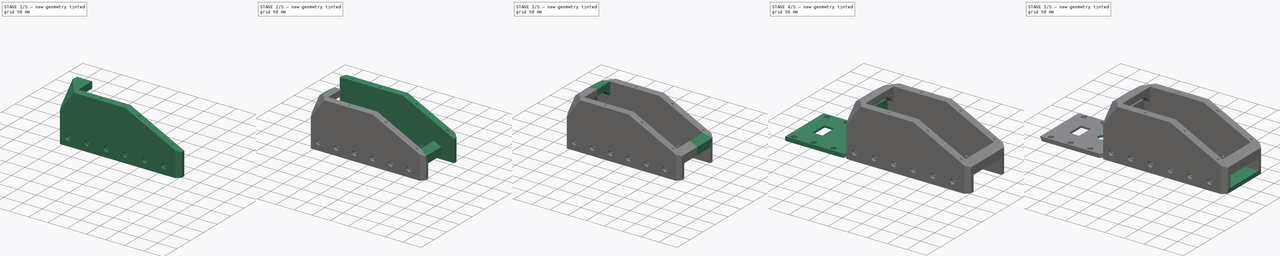
[diagram: build sequence overview — one tinted view per stage of 5, left to right]
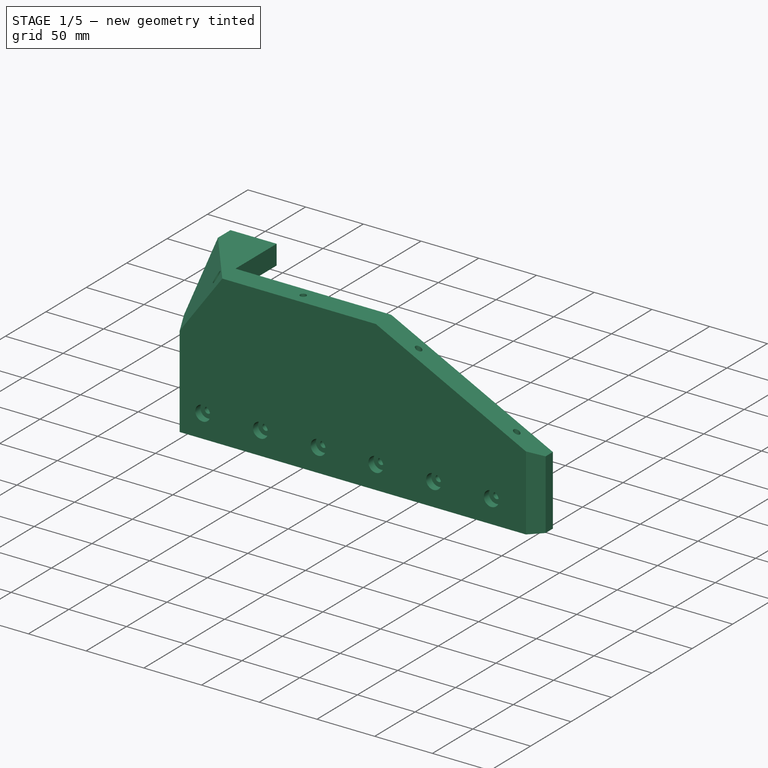
[diagram: stage 1 of 5 — iso view after this stage's code; geometry added in this stage tinted green]
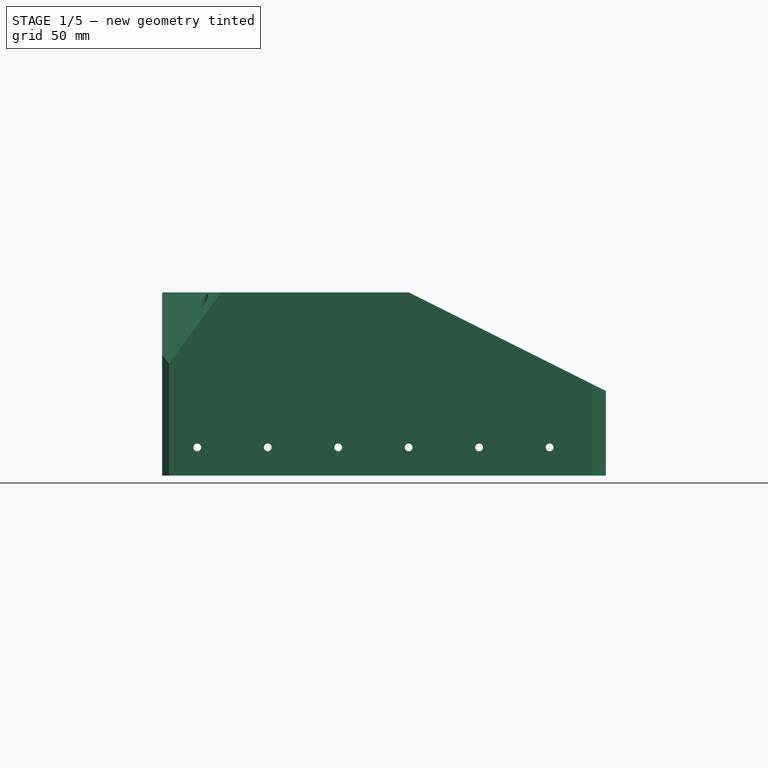
[diagram: stage 1 of 5 — front view after this stage's code; geometry added in this stage tinted green]
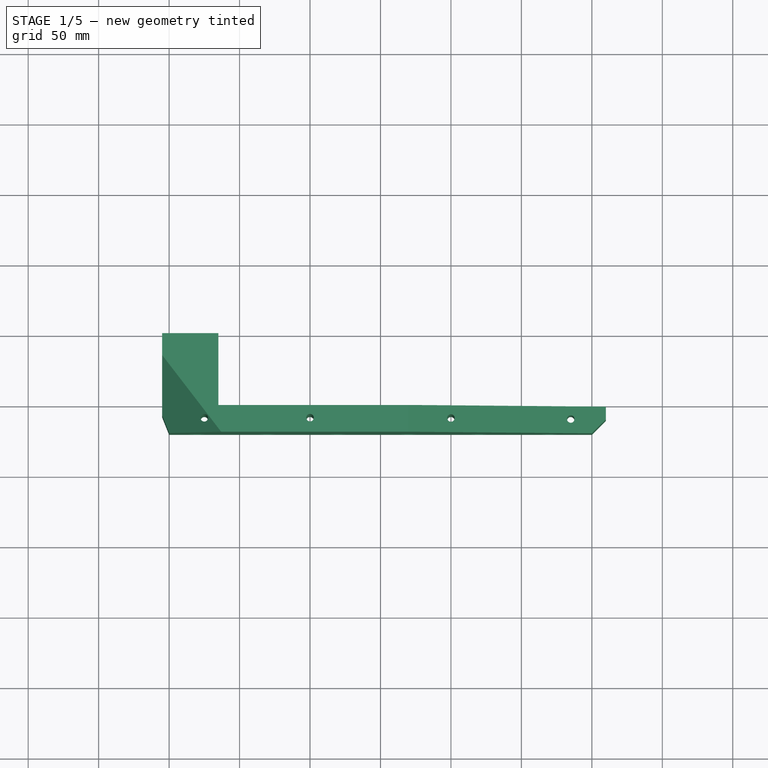
[diagram: stage 1 of 5 — top view after this stage's code; geometry added in this stage tinted green]
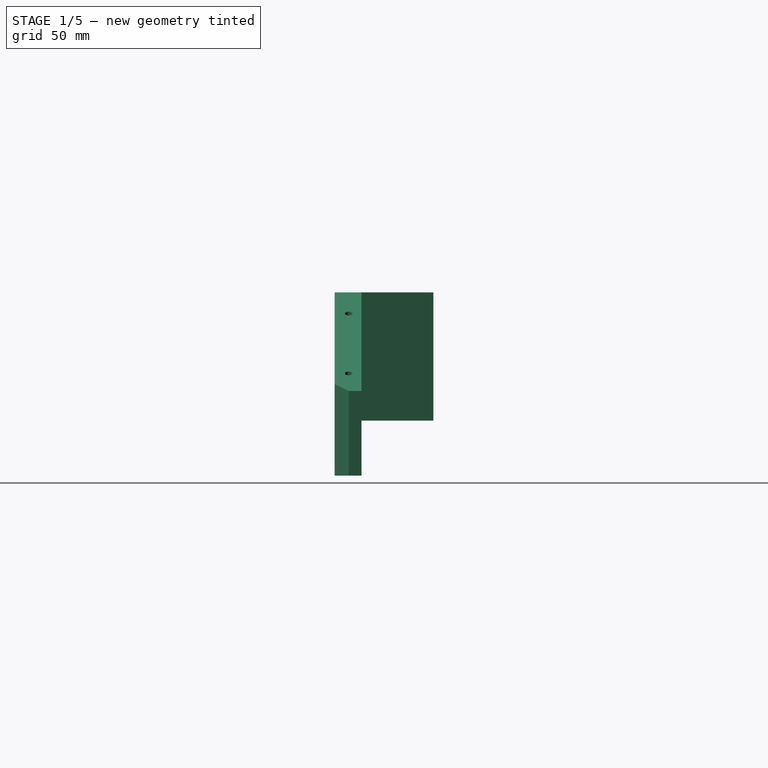
[diagram: stage 1 of 5 — right view after this stage's code; geometry added in this stage tinted green]
FCSTD DOCUMENT  (FreeCAD 1.0R39285 (Git))
Label: InverterEnclosure
License: All rights reserved
LicenseURL: https://en.wikipedia.org/wiki/All_rights_reserved
objects: Sketcher::SketchObject×34, PartDesign::Pocket×13, PartDesign::Pad×12, PartDesign::Hole×9, PartDesign::Body×6, Part::Feature×5, App::Part×1
note: 181 computed .brp shape members not serialized (recipe doc carries the construction recipe); baked Part::Feature solids carry a one-line shape summary decoded from their .brp

FEATURE [Sketcher::SketchObject] Sketch005
  ArcFitTolerance = 1e-06
  AttachmentSupport = -> [XY_Plane003]
  FullyConstrained = false
  MakeInternals = false
  MapMode = 5
  sketch-geometry (6):
    g0: LineSegment StartX=300 StartY=-70 StartZ=0 EndX=0 EndY=-70 EndZ=0
    g1: LineSegment StartX=0 StartY=-70 StartZ=0 EndX=-5 EndY=-57.5 EndZ=0
    g2: LineSegment StartX=300 StartY=-70 StartZ=0 EndX=310 EndY=-60 EndZ=0
    g3: LineSegment StartX=310 StartY=-60 StartZ=0 EndX=310 EndY=-51 EndZ=0
    g4: LineSegment StartX=310 StartY=-51 StartZ=0 EndX=-5 EndY=-51 EndZ=0
    g5: LineSegment StartX=-5 StartY=-51 StartZ=0 EndX=-5 EndY=-57.5 EndZ=0
  constraints (10):
    c: Horizontal(g0)
    c: Coincident(g1,g0)
    c: Coincident(g2,g0)
    c: Coincident(g3,g2)
    c: Vertical(g3)
    c: Coincident(g4,g3)
    c: Horizontal(g4)
    c: Coincident(g5,g4)
    c: Coincident(g5,g1)
    c: Vertical(g5)
FEATURE [PartDesign::Pad] Pad002
  Direction = (0,0,1)
  Length = 130
  Length2 = 10
  Profile = -> Sketch005
  ReferenceAxis = -> Sketch005 [N_Axis]
  Refine = true
  Suppressed = false
  Type = 0
FEATURE [Sketcher::SketchObject] Sketch006
  ArcFitTolerance = 1e-06
  AttachmentSupport = -> [XZ_Plane003]
  FullyConstrained = false
  MakeInternals = false
  MapMode = 5
  Placement = pos=(0,0,0) rot=(1,0,0;1.5708rad)
  sketch-geometry (3):
    g0: LineSegment StartX=310 StartY=60 StartZ=0 EndX=130 EndY=150 EndZ=0
    g1: LineSegment StartX=130 StartY=150 StartZ=0 EndX=310 EndY=150 EndZ=0
    g2: LineSegment StartX=310 StartY=150 StartZ=0 EndX=310 EndY=60 EndZ=0
  constraints (5):
    c: Coincident(g1,g0)
    c: Horizontal(g1)
    c: Coincident(g2,g1)
    c: Coincident(g2,g0)
    c: Vertical(g2)
FEATURE [PartDesign::Pocket] Pocket001
  BaseFeature = -> Pad002
  Direction = (0,1,-2e-16)
  Length = 77
  Length2 = 5
  Profile = -> Sketch006
  ReferenceAxis = -> Sketch006 [N_Axis]
  Refine = true
  Reversed = true
  Suppressed = false
  Type = 0
FEATURE [Sketcher::SketchObject] Sketch007  label="AttachmentPatterns001"
  ArcFitTolerance = 1e-06
  AttachmentOffset = pos=(0,0,150) rot=(0,0,1;0rad)
  AttachmentSupport = -> [XY_Plane003]
  FullyConstrained = false
  MakeInternals = false
  MapMode = 5
  Placement = pos=(0,0,150) rot=(0,0,1;0rad)
  sketch-geometry (4):
    g0: Circle CenterX=100 CenterY=-60 CenterZ=0 NormalX=0 NormalY=0 NormalZ=1 AngleXU=0 Radius=5
    g1: Circle CenterX=200 CenterY=-60 CenterZ=0 NormalX=0 NormalY=0 NormalZ=1 AngleXU=0 Radius=5
    g2: Circle CenterX=285 CenterY=-60 CenterZ=0 NormalX=0 NormalY=0 NormalZ=1 AngleXU=0 Radius=5
    g3: Circle CenterX=25 CenterY=-60 CenterZ=0 NormalX=0 NormalY=0 NormalZ=1 AngleXU=0 Radius=5
FEATURE [PartDesign::Hole] Hole002
  BaseFeature = -> Pocket001
  CustomThreadClearance = 0
  Depth = 704.894
  DepthType = 1
  Diameter = 5.3
  DrillForDepth = false
  DrillPoint = 1
  DrillPointAngle = 118
  HoleCutCountersinkAngle = 90
  HoleCutCustomValues = false
  HoleCutDepth = 0
  HoleCutDiameter = 12
  HoleCutType = 0
  ModelThread = false
  Profile = -> Sketch007
  Refine = true
  Suppressed = false
  Tapered = false
  TaperedAngle = 90
  ThreadClass = 0
  ThreadDepth = 704.894
  ThreadDepthType = 0
  ThreadDirection = 0
  ThreadFit = 1
  ThreadSize = 13
  ThreadType = 1
  Threaded = false
  UseCustomThreadClearance = false
FEATURE [Sketcher::SketchObject] Sketch008
  ArcFitTolerance = 1e-06
  AttachmentOffset = pos=(0,0,70) rot=(0,0,1;0rad)
  AttachmentSupport = -> [XZ_Plane003]
  FullyConstrained = false
  MakeInternals = false
  MapMode = 5
  Placement = pos=(0,-70,1.55e-14) rot=(1,0,0;1.5708rad)
  sketch-geometry (6):
    g0: Circle CenterX=20 CenterY=20 CenterZ=0 NormalX=0 NormalY=0 NormalZ=1 AngleXU=0 Radius=10
    g1: Circle CenterX=70 CenterY=20 CenterZ=0 NormalX=0 NormalY=0 NormalZ=1 AngleXU=0 Radius=10
    g2: Circle CenterX=120 CenterY=20 CenterZ=0 NormalX=0 NormalY=0 NormalZ=1 AngleXU=0 Radius=10
    g3: Circle CenterX=170 CenterY=20 CenterZ=0 NormalX=0 NormalY=0 NormalZ=1 AngleXU=0 Radius=10
    g4: Circle CenterX=220 CenterY=20 CenterZ=0 NormalX=0 NormalY=0 NormalZ=1 AngleXU=0 Radius=10
    g5: Circle CenterX=270 CenterY=20 CenterZ=0 NormalX=0 NormalY=0 NormalZ=1 AngleXU=0 Radius=10
FEATURE [PartDesign::Hole] Hole003
  BaseFeature = -> Hole002
  CustomThreadClearance = 0
  Depth = 25
  DepthType = 0
  Diameter = 5.5
  DrillForDepth = false
  DrillPoint = 1
  DrillPointAngle = 118
  HoleCutCountersinkAngle = 90
  HoleCutCustomValues = false
  HoleCutDepth = 6.4
  HoleCutDiameter = 13
  HoleCutType = 9
  ModelThread = false
  Profile = -> Sketch008
  Refine = true
  Suppressed = false
  Tapered = false
  TaperedAngle = 90
  ThreadClass = 0
  ThreadDepth = 25
  ThreadDepthType = 0
  ThreadDirection = 0
  ThreadFit = 0
  ThreadSize = 13
  ThreadType = 1
  Threaded = false
  UseCustomThreadClearance = false
FEATURE [PartDesign::Body] Body  label="BasePlate"
  AllowCompound = false
  Group = -> [Sketch,Pad,Sketch009,Hole004,Sketch010,Hole005]
  Origin = -> Origin
  Tip = -> Hole005
FEATURE [Sketcher::SketchObject] Sketch011
  ArcFitTolerance = 1e-06
  AttachmentSupport = -> [XZ_Plane003]
  FullyConstrained = false
  MakeInternals = false
  MapMode = 5
  Placement = pos=(0,0,0) rot=(1,0,0;1.5708rad)
  sketch-geometry (4):
    g0: LineSegment StartX=-5 StartY=130 StartZ=0 EndX=-5 EndY=39 EndZ=0
    g1: LineSegment StartX=-5 StartY=39 StartZ=0 EndX=35 EndY=39 EndZ=0
    g2: LineSegment StartX=35 StartY=39 StartZ=0 EndX=35 EndY=130 EndZ=0
    g3: LineSegment StartX=35 StartY=130 StartZ=0 EndX=-5 EndY=130 EndZ=0
  constraints (8):
    c: Coincident(g0,g1)
    c: Coincident(g1,g2)
    c: Coincident(g2,g3)
    c: Coincident(g3,g0)
    c: Vertical(g0)
    c: Vertical(g2)
    c: Horizontal(g1)
    c: Horizontal(g3)
FEATURE [PartDesign::Pad] Pad003
  BaseFeature = -> Hole003
  Direction = (0,-1,2e-16)
  Length = 55
  Length2 = 10
  Profile = -> Sketch011
  ReferenceAxis = -> Sketch011 [N_Axis]
  Refine = true
  Suppressed = false
  Type = 0
FEATURE [Sketcher::SketchObject] Sketch013
  ArcFitTolerance = 1e-06
  AttachmentOffset = pos=(0,0,130) rot=(0,0,1;0rad)
  AttachmentSupport = -> [XY_Plane003]
  FullyConstrained = false
  MakeInternals = false
  MapMode = 5
  Placement = pos=(0,0,130) rot=(0,0,1;0rad)
  sketch-geometry (3):
    g0: LineSegment StartX=-40 StartY=30 StartZ=0 EndX=60 EndY=-100 EndZ=0
    g1: LineSegment StartX=60 StartY=-100 StartZ=0 EndX=-40 EndY=-100 EndZ=0
    g2: LineSegment StartX=-40 StartY=-100 StartZ=0 EndX=-40 EndY=30 EndZ=0
  constraints (5):
    c: Coincident(g1,g0)
    c: Horizontal(g1)
    c: Coincident(g2,g1)
    c: Coincident(g2,g0)
    c: Vertical(g2)
FEATURE [PartDesign::Pocket] Pocket002
  BaseFeature = -> Pad003
  Direction = (0,0,-1)
  Length = 55
  Length2 = 5
  Profile = -> Sketch013
  ReferenceAxis = -> Sketch013 [N_Axis]
  Refine = true
  Suppressed = false
  TaperAngle = -30
  Type = 0
FEATURE [Sketcher::SketchObject] Sketch017
  ArcFitTolerance = 1e-06
  AttachmentOffset = pos=(0,0,35) rot=(0,0,1;0rad)
  AttachmentSupport = -> [YZ_Plane003]
  FullyConstrained = false
  MakeInternals = false
  MapMode = 5
  Placement = pos=(35,0,0) rot=(0.57735,0.57735,0.57735;2.0944rad)
  sketch-geometry (5):
    g0: LineSegment StartX=-51 StartY=30 StartZ=0 EndX=0 EndY=30 EndZ=0
    g1: LineSegment StartX=0 StartY=30 StartZ=0 EndX=0 EndY=113 EndZ=0
    g2: LineSegment StartX=-30 StartY=113 StartZ=0 EndX=-51 EndY=94 EndZ=0
    g3: LineSegment StartX=-51 StartY=94 StartZ=0 EndX=-51 EndY=30 EndZ=0
    g4: LineSegment StartX=-30 StartY=113 StartZ=0 EndX=0 EndY=113 EndZ=0
  constraints (9):
    c: Coincident(g0,g1)
    c: Vertical(g1)
    c: Horizontal(g0)
    c: Coincident(g3,g2)
    c: Coincident(g3,g0)
    c: Vertical(g3)
    c: Coincident(g4,g2)
    c: Coincident(g4,g1)
    c: Horizontal(g4)
FEATURE [PartDesign::Pocket] Pocket005
  BaseFeature = -> Pocket002
  Direction = (-1,0,0)
  Length = 36
  Length2 = 5
  Profile = -> Sketch017
  ReferenceAxis = -> Sketch017 [N_Axis]
  Refine = true
  Suppressed = false
  Type = 0
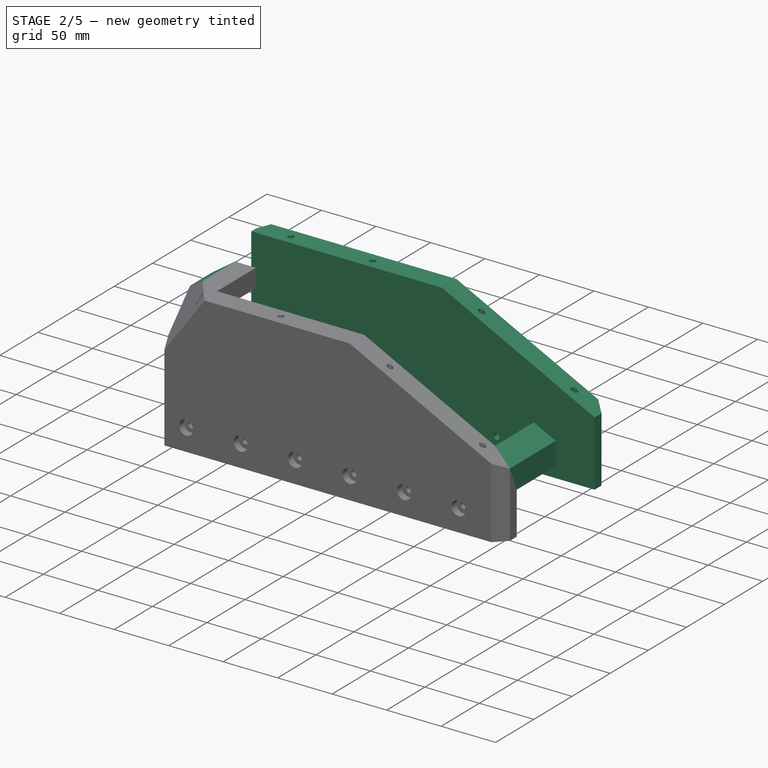
[diagram: stage 2 of 5 — iso view after this stage's code; geometry added in this stage tinted green]
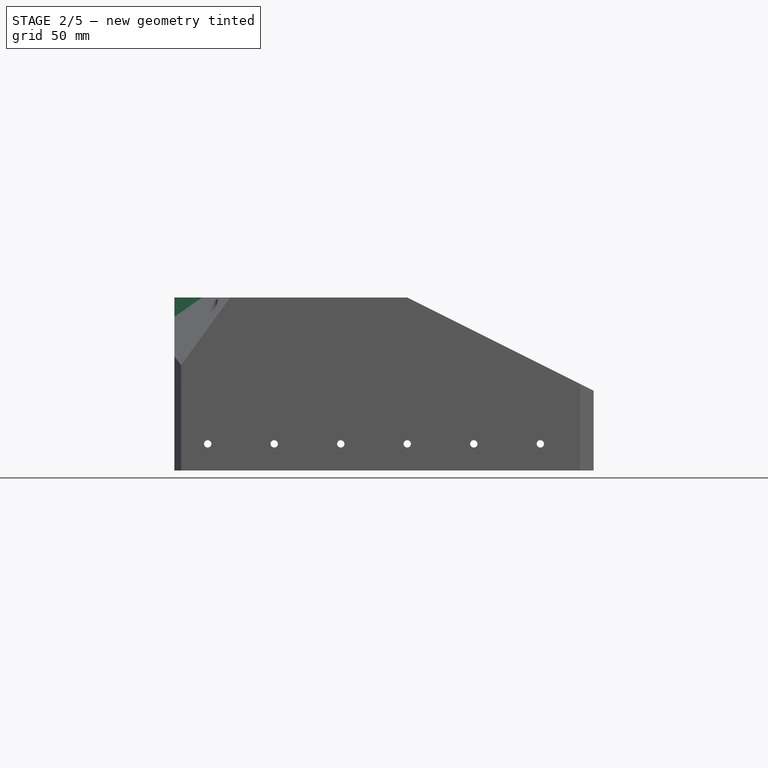
[diagram: stage 2 of 5 — front view after this stage's code; geometry added in this stage tinted green]
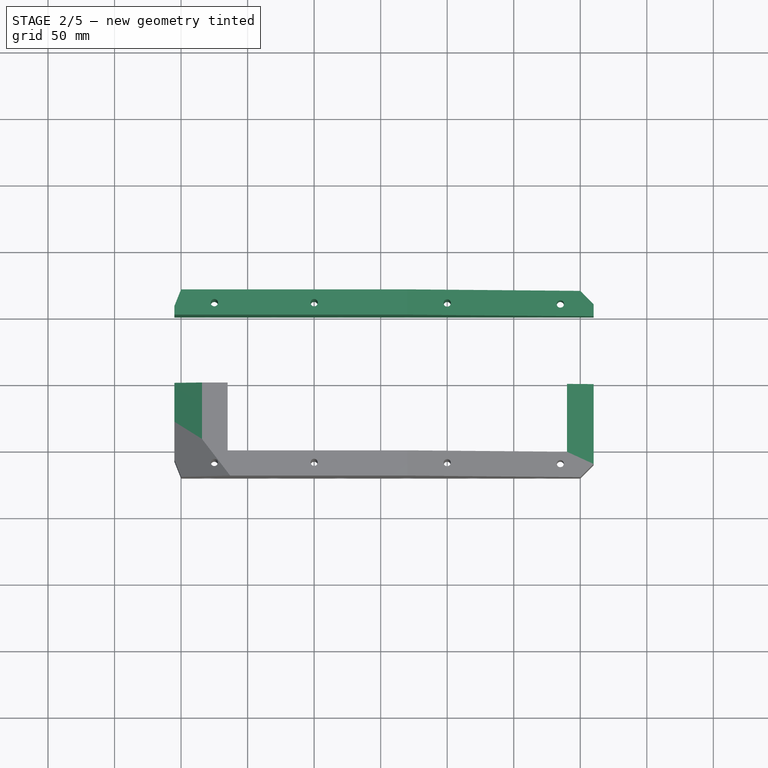
[diagram: stage 2 of 5 — top view after this stage's code; geometry added in this stage tinted green]
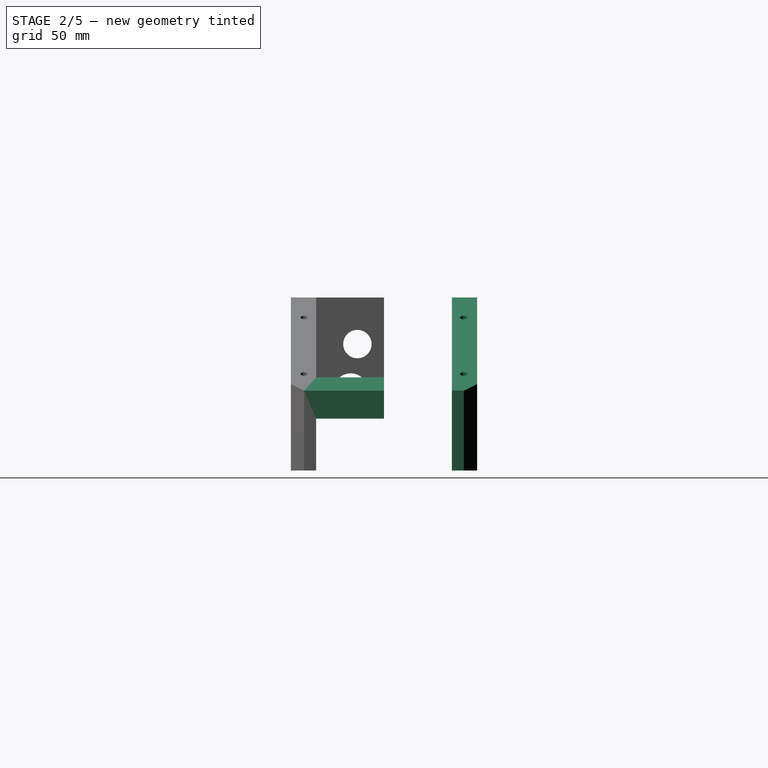
[diagram: stage 2 of 5 — right view after this stage's code; geometry added in this stage tinted green]
FEATURE [Part::Feature] Part__Feature001  label="CL350"
  shape: bbox 135 x 35 x 79.83 mm, 848 faces (baked)
FEATURE [Part::Feature] Part__Feature002  label="CL351"
  shape: bbox 135 x 10 x 75 mm, 286 faces (baked)
FEATURE [Part::Feature] Part__Feature003  label="CL352"
  shape: bbox 27.57 x 12.96 x 11.72 mm, 636 faces (baked)
FEATURE [Part::Feature] Part__Feature004  label="CL353"
  shape: bbox 27.57 x 12.96 x 11.72 mm, 636 faces (baked)
FEATURE [App::Part] CL350  label="CL354"
  Group = -> [Part__Feature001,Part__Feature002,Part__Feature003,Part__Feature004]
  Origin = -> Origin001
  Placement = pos=(50,-28,58.5) rot=(-1,0,0;4.71239rad)
FEATURE [Sketcher::SketchObject] Sketch001
  ArcFitTolerance = 1e-06
  AttachmentSupport = -> [XY_Plane002]
  FullyConstrained = false
  MakeInternals = false
  MapMode = 5
  sketch-geometry (6):
    g0: LineSegment StartX=300 StartY=70 StartZ=0 EndX=0 EndY=70 EndZ=0
    g1: LineSegment StartX=0 StartY=70 StartZ=0 EndX=-5 EndY=57.5 EndZ=0
    g2: LineSegment StartX=300 StartY=70 StartZ=0 EndX=310 EndY=60 EndZ=0
    g3: LineSegment StartX=310 StartY=60 StartZ=0 EndX=310 EndY=51 EndZ=0
    g4: LineSegment StartX=310 StartY=51 StartZ=0 EndX=-5 EndY=51 EndZ=0
    g5: LineSegment StartX=-5 StartY=51 StartZ=0 EndX=-5 EndY=57.5 EndZ=0
  constraints (10):
    c: Horizontal(g0)
    c: Coincident(g1,g0)
    c: Coincident(g2,g0)
    c: Coincident(g3,g2)
    c: Vertical(g3)
    c: Coincident(g4,g3)
    c: Horizontal(g4)
    c: Coincident(g5,g4)
    c: Coincident(g5,g1)
    c: Vertical(g5)
FEATURE [PartDesign::Pad] Pad001
  Direction = (0,0,1)
  Length = 130
  Length2 = 10
  Profile = -> Sketch001
  ReferenceAxis = -> Sketch001 [N_Axis]
  Refine = true
  Suppressed = false
  Type = 0
FEATURE [Sketcher::SketchObject] Sketch002
  ArcFitTolerance = 1e-06
  AttachmentSupport = -> [XZ_Plane002]
  FullyConstrained = false
  MakeInternals = false
  MapMode = 5
  Placement = pos=(0,0,0) rot=(1,0,0;1.5708rad)
  sketch-geometry (3):
    g0: LineSegment StartX=310 StartY=60 StartZ=0 EndX=130 EndY=150 EndZ=0
    g1: LineSegment StartX=130 StartY=150 StartZ=0 EndX=310 EndY=150 EndZ=0
    g2: LineSegment StartX=310 StartY=150 StartZ=0 EndX=310 EndY=60 EndZ=0
  constraints (5):
    c: Coincident(g1,g0)
    c: Horizontal(g1)
    c: Coincident(g2,g1)
    c: Coincident(g2,g0)
    c: Vertical(g2)
FEATURE [PartDesign::Pocket] Pocket
  BaseFeature = -> Pad001
  Direction = (0,1,-2e-16)
  Length = 77
  Length2 = 5
  Profile = -> Sketch002
  ReferenceAxis = -> Sketch002 [N_Axis]
  Refine = true
  Suppressed = false
  Type = 0
FEATURE [Sketcher::SketchObject] Sketch003  label="AttachmentPatterns"
  ArcFitTolerance = 1e-06
  AttachmentOffset = pos=(0,0,150) rot=(0,0,1;0rad)
  AttachmentSupport = -> [XY_Plane002]
  FullyConstrained = false
  MakeInternals = false
  MapMode = 5
  Placement = pos=(0,0,150) rot=(0,0,1;0rad)
  sketch-geometry (4):
    g0: Circle CenterX=100 CenterY=60 CenterZ=0 NormalX=0 NormalY=0 NormalZ=1 AngleXU=0 Radius=5
    g1: Circle CenterX=200 CenterY=60 CenterZ=0 NormalX=0 NormalY=0 NormalZ=1 AngleXU=0 Radius=5
    g2: Circle CenterX=285 CenterY=60 CenterZ=0 NormalX=0 NormalY=0 NormalZ=1 AngleXU=0 Radius=5
    g3: Circle CenterX=25 CenterY=60 CenterZ=0 NormalX=0 NormalY=0 NormalZ=1 AngleXU=0 Radius=5
FEATURE [PartDesign::Hole] Hole
  BaseFeature = -> Pocket
  CustomThreadClearance = 0
  Depth = 707.626
  DepthType = 1
  Diameter = 5.5
  DrillForDepth = false
  DrillPoint = 1
  DrillPointAngle = 118
  HoleCutCountersinkAngle = 90
  HoleCutCustomValues = false
  HoleCutDepth = 0
  HoleCutDiameter = 13
  HoleCutType = 0
  ModelThread = false
  Profile = -> Sketch003
  Refine = true
  Suppressed = false
  Tapered = false
  TaperedAngle = 90
  ThreadClass = 0
  ThreadDepth = 707.626
  ThreadDepthType = 0
  ThreadDirection = 0
  ThreadFit = 0
  ThreadSize = 13
  ThreadType = 1
  Threaded = false
  UseCustomThreadClearance = false
FEATURE [Sketcher::SketchObject] Sketch004
  ArcFitTolerance = 1e-06
  AttachmentOffset = pos=(0,0,-70) rot=(0,0,1;0rad)
  AttachmentSupport = -> [XZ_Plane002]
  FullyConstrained = false
  MakeInternals = false
  MapMode = 5
  Placement = pos=(0,70,-1.55e-14) rot=(1,0,0;1.5708rad)
  sketch-geometry (6):
    g0: Circle CenterX=20 CenterY=20 CenterZ=0 NormalX=0 NormalY=0 NormalZ=1 AngleXU=0 Radius=10
    g1: Circle CenterX=70 CenterY=20 CenterZ=0 NormalX=0 NormalY=0 NormalZ=1 AngleXU=0 Radius=10
    g2: Circle CenterX=120 CenterY=20 CenterZ=0 NormalX=0 NormalY=0 NormalZ=1 AngleXU=0 Radius=10
    g3: Circle CenterX=170 CenterY=20 CenterZ=0 NormalX=0 NormalY=0 NormalZ=1 AngleXU=0 Radius=10
    g4: Circle CenterX=220 CenterY=20 CenterZ=0 NormalX=0 NormalY=0 NormalZ=1 AngleXU=0 Radius=10
    g5: Circle CenterX=270 CenterY=20 CenterZ=0 NormalX=0 NormalY=0 NormalZ=1 AngleXU=0 Radius=10
FEATURE [PartDesign::Hole] Hole001
  BaseFeature = -> Hole
  CustomThreadClearance = 0
  Depth = 25
  DepthType = 0
  Diameter = 5.5
  DrillForDepth = false
  DrillPoint = 1
  DrillPointAngle = 118
  HoleCutCountersinkAngle = 90
  HoleCutCustomValues = false
  HoleCutDepth = 6.4
  HoleCutDiameter = 13
  HoleCutType = 9
  ModelThread = false
  Profile = -> Sketch004
  Refine = true
  Reversed = true
  Suppressed = false
  Tapered = false
  TaperedAngle = 90
  ThreadClass = 0
  ThreadDepth = 25
  ThreadDepthType = 0
  ThreadDirection = 0
  ThreadFit = 0
  ThreadSize = 13
  ThreadType = 1
  Threaded = false
  UseCustomThreadClearance = false
FEATURE [Sketcher::SketchObject] Sketch019
  ArcFitTolerance = 1e-06
  AttachmentSupport = -> [XZ_Plane003]
  FullyConstrained = false
  MakeInternals = false
  MapMode = 5
  Placement = pos=(0,0,0) rot=(1,0,0;1.5708rad)
  sketch-geometry (4):
    g0: LineSegment StartX=290 StartY=70 StartZ=0 EndX=290 EndY=39 EndZ=0
    g1: LineSegment StartX=290 StartY=39 StartZ=0 EndX=310 EndY=39 EndZ=0
    g2: LineSegment StartX=310 StartY=39 StartZ=0 EndX=310 EndY=60 EndZ=0
    g3: LineSegment StartX=310 StartY=60 StartZ=0 EndX=290 EndY=70 EndZ=0
  constraints (7):
    c: Vertical(g0)
    c: Coincident(g1,g0)
    c: Horizontal(g1)
    c: Coincident(g2,g1)
    c: Vertical(g2)
    c: Coincident(g3,g2)
    c: Coincident(g3,g0)
FEATURE [PartDesign::Pad] Pad007
  BaseFeature = -> Pocket005
  Direction = (0,-1,2e-16)
  Length = 54
  Length2 = 10
  Profile = -> Sketch019
  ReferenceAxis = -> Sketch019 [N_Axis]
  Refine = true
  Suppressed = false
  Type = 0
FEATURE [Sketcher::SketchObject] Sketch030
  ArcFitTolerance = 1e-06
  AttachmentSupport = -> [YZ_Plane003]
  FullyConstrained = false
  MakeInternals = false
  MapMode = 5
  Placement = pos=(0,0,0) rot=(0.57735,0.57735,0.57735;2.0944rad)
  sketch-geometry (2):
    g0: Circle CenterX=-25 CenterY=60 CenterZ=0 NormalX=0 NormalY=0 NormalZ=1 AngleXU=0 Radius=13
    g1: Circle CenterX=-20 CenterY=95 CenterZ=0 NormalX=0 NormalY=0 NormalZ=1 AngleXU=0 Radius=10.65
  constraints (2):
    c: Radius(g0) = 13
    c: Radius(g1) = 10.65
FEATURE [PartDesign::Pocket] Pocket010
  BaseFeature = -> Pad007
  Direction = (-1,0,0)
  Length = 5
  Length2 = 5
  Profile = -> Sketch030
  ReferenceAxis = -> Sketch030 [N_Axis]
  Refine = true
  Suppressed = false
  Type = 0
FEATURE [PartDesign::Body] Body001  label="SideWall"
  AllowCompound = false
  Group = -> [Sketch001,Pad001,Sketch002,Pocket,Sketch003,Hole,Sketch004,Hole001,Sketch012,Pad004,Sketch014,Pocket003,Sketch016,Pocket004,Sketch018,Pad006,Sketch028,Pocket009,Sketch136,Pocket011]
  Origin = -> Origin002
  Placement = pos=(0,0,10) rot=(0,0,1;0rad)
  Tip = -> Pocket011
FEATURE [PartDesign::Pocket] Pocket012
  BaseFeature = -> Pocket010
  Direction = (0,1,-2e-16)
  Length = 104
  Length2 = 5
  Profile = -> Sketch135
  ReferenceAxis = -> Sketch135 [N_Axis]
  Refine = true
  Reversed = true
  Suppressed = false
  Type = 0
FEATURE [PartDesign::Body] Body002  label="SideWall001"
  AllowCompound = false
  Group = -> [Sketch005,Pad002,Sketch006,Pocket001,Sketch007,Hole002,Sketch008,Hole003,Sketch011,Pad003,Sketch013,Pocket002,Sketch017,Pocket005,Sketch019,Pad007,Sketch030,Pocket010,Sketch135,Pocket012]
  Origin = -> Origin003
  Placement = pos=(0,0,10) rot=(0,0,1;0rad)
  Tip = -> Pocket012
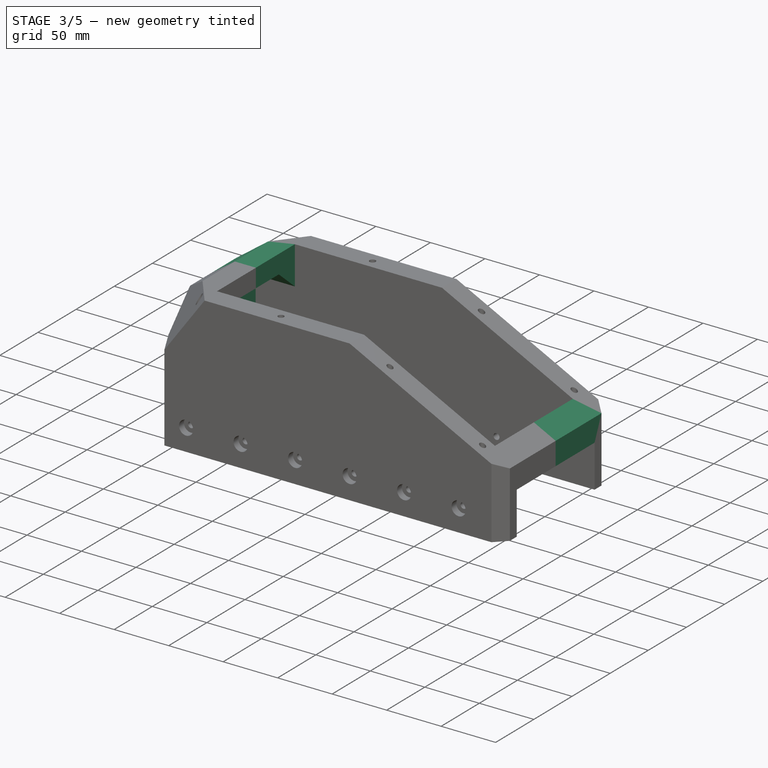
[diagram: stage 3 of 5 — iso view after this stage's code; geometry added in this stage tinted green]
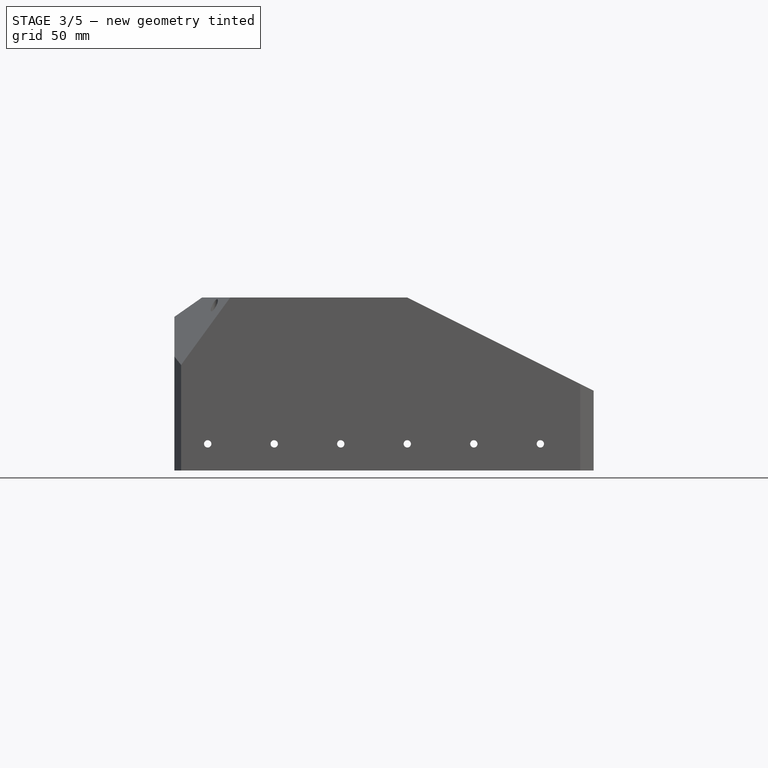
[diagram: stage 3 of 5 — front view after this stage's code; geometry added in this stage tinted green]
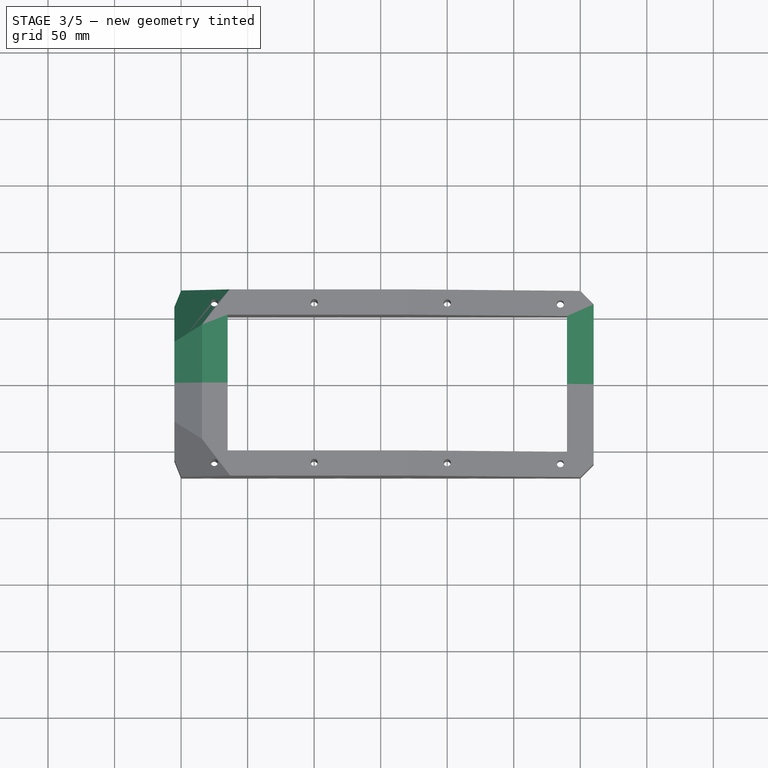
[diagram: stage 3 of 5 — top view after this stage's code; geometry added in this stage tinted green]
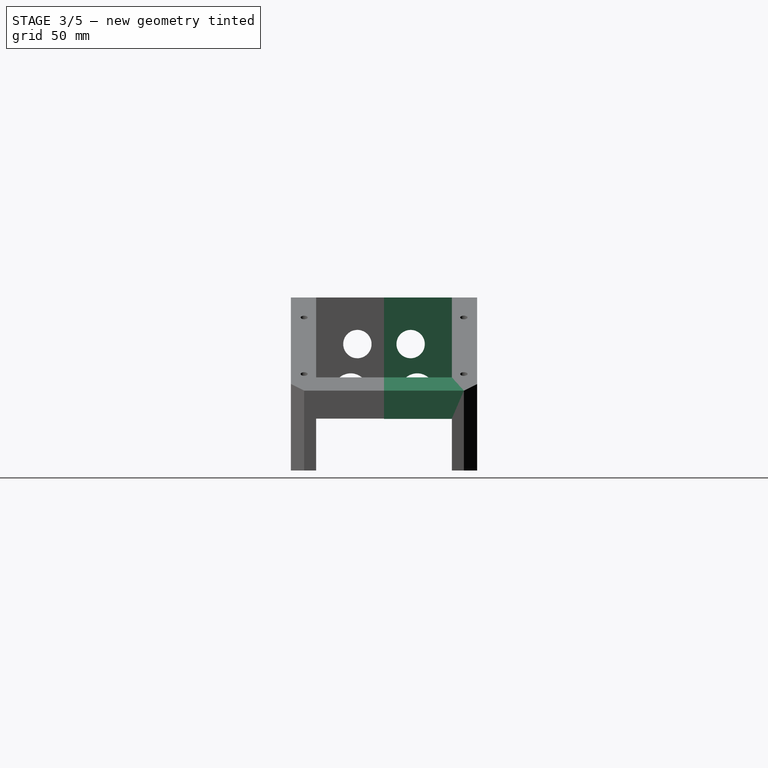
[diagram: stage 3 of 5 — right view after this stage's code; geometry added in this stage tinted green]
FEATURE [Sketcher::SketchObject] Sketch012
  ArcFitTolerance = 1e-06
  AttachmentSupport = -> [XZ_Plane002]
  FullyConstrained = false
  MakeInternals = false
  MapMode = 5
  Placement = pos=(0,0,0) rot=(1,0,0;1.5708rad)
  sketch-geometry (4):
    g0: LineSegment StartX=-5 StartY=130 StartZ=0 EndX=-5 EndY=38.75 EndZ=0
    g1: LineSegment StartX=-5 StartY=38.75 StartZ=0 EndX=35 EndY=38.75 EndZ=0
    g2: LineSegment StartX=35 StartY=38.75 StartZ=0 EndX=35 EndY=130 EndZ=0
    g3: LineSegment StartX=35 StartY=130 StartZ=0 EndX=-5 EndY=130 EndZ=0
  constraints (8):
    c: Coincident(g0,g1)
    c: Coincident(g1,g2)
    c: Coincident(g2,g3)
    c: Coincident(g3,g0)
    c: Vertical(g0)
    c: Vertical(g2)
    c: Horizontal(g1)
    c: Horizontal(g3)
FEATURE [PartDesign::Pad] Pad004
  BaseFeature = -> Hole001
  Direction = (0,-1,2e-16)
  Length = 52
  Length2 = 10
  Profile = -> Sketch012
  ReferenceAxis = -> Sketch012 [N_Axis]
  Refine = true
  Reversed = true
  Suppressed = false
  Type = 0
FEATURE [Sketcher::SketchObject] Sketch014
  ArcFitTolerance = 1e-06
  AttachmentOffset = pos=(0,0,130) rot=(0,0,1;0rad)
  AttachmentSupport = -> [XY_Plane002]
  FullyConstrained = false
  MakeInternals = false
  MapMode = 5
  Placement = pos=(0,0,130) rot=(0,0,1;0rad)
  sketch-geometry (3):
    g0: LineSegment StartX=-50 StartY=-40 StartZ=0 EndX=-50 EndY=100 EndZ=0
    g1: LineSegment StartX=-50 StartY=100 StartZ=0 EndX=60 EndY=100 EndZ=0
    g2: LineSegment StartX=60 StartY=100 StartZ=0 EndX=-50 EndY=-40 EndZ=0
  constraints (5):
    c: Vertical(g0)
    c: Coincident(g1,g0)
    c: Horizontal(g1)
    c: Coincident(g2,g1)
    c: Coincident(g2,g0)
FEATURE [PartDesign::Pocket] Pocket003
  BaseFeature = -> Pad004
  Direction = (0,0,-1)
  Length = 54
  Length2 = 5
  Profile = -> Sketch014
  ReferenceAxis = -> Sketch014 [N_Axis]
  Refine = true
  Suppressed = false
  TaperAngle = -30
  Type = 0
FEATURE [Sketcher::SketchObject] Sketch015
  ArcFitTolerance = 1e-06
  AttachmentSupport = -> [XY_Plane004]
  FullyConstrained = false
  MakeInternals = false
  MapMode = 5
  sketch-geometry (6):
    g0: LineSegment StartX=20 StartY=35 StartZ=0 EndX=40 EndY=70 EndZ=0
    g1: LineSegment StartX=40 StartY=70 StartZ=0 EndX=170 EndY=70 EndZ=0
    g2: LineSegment StartX=170 StartY=70 StartZ=0 EndX=170 EndY=-70 EndZ=0
    g3: LineSegment StartX=170 StartY=-70 StartZ=0 EndX=40 EndY=-70 EndZ=0
    g4: LineSegment StartX=40 StartY=-70 StartZ=0 EndX=20 EndY=-35 EndZ=0
    g5: LineSegment StartX=20 StartY=-35 StartZ=0 EndX=20 EndY=35 EndZ=0
  constraints (10):
    c: Coincident(g1,g0)
    c: Horizontal(g1)
    c: Coincident(g2,g1)
    c: Vertical(g2)
    c: Coincident(g3,g2)
    c: Horizontal(g3)
    c: Coincident(g4,g3)
    c: Coincident(g5,g4)
    c: Coincident(g5,g0)
    c: Vertical(g5)
FEATURE [Sketcher::SketchObject] Sketch016
  ArcFitTolerance = 1e-06
  AttachmentOffset = pos=(0,0,35) rot=(0,0,1;0rad)
  AttachmentSupport = -> [YZ_Plane002]
  FullyConstrained = false
  MakeInternals = false
  MapMode = 5
  Placement = pos=(35,0,0) rot=(0.57735,0.57735,0.57735;2.0944rad)
  sketch-geometry (5):
    g0: LineSegment StartX=0 StartY=113 StartZ=0 EndX=0 EndY=29 EndZ=0
    g1: LineSegment StartX=0 StartY=29 StartZ=0 EndX=51 EndY=29 EndZ=0
    g2: LineSegment StartX=30 StartY=113 StartZ=0 EndX=51 EndY=95 EndZ=0
    g3: LineSegment StartX=51 StartY=29 StartZ=0 EndX=51 EndY=95 EndZ=0
    g4: LineSegment StartX=30 StartY=113 StartZ=0 EndX=0 EndY=113 EndZ=0
  constraints (9):
    c: Coincident(g0,g1)
    c: Horizontal(g1)
    c: Vertical(g0)
    c: Coincident(g3,g1)
    c: Coincident(g3,g2)
    c: Vertical(g3)
    c: Coincident(g4,g2)
    c: Coincident(g4,g0)
    c: Horizontal(g4)
FEATURE [PartDesign::Pocket] Pocket004
  BaseFeature = -> Pocket003
  Direction = (-1,0,0)
  Length = 36
  Length2 = 5
  Profile = -> Sketch016
  ReferenceAxis = -> Sketch016 [N_Axis]
  Refine = true
  Suppressed = false
  Type = 0
FEATURE [Sketcher::SketchObject] Sketch018
  ArcFitTolerance = 1e-06
  AttachmentSupport = -> [XZ_Plane002]
  FullyConstrained = false
  MakeInternals = false
  MapMode = 5
  Placement = pos=(0,0,0) rot=(1,0,0;1.5708rad)
  sketch-geometry (4):
    g0: LineSegment StartX=290 StartY=70 StartZ=0 EndX=290 EndY=39 EndZ=0
    g1: LineSegment StartX=290 StartY=39 StartZ=0 EndX=310 EndY=39 EndZ=0
    g2: LineSegment StartX=310 StartY=39 StartZ=0 EndX=310 EndY=60 EndZ=0
    g3: LineSegment StartX=310 StartY=60 StartZ=0 EndX=290 EndY=70 EndZ=0
  constraints (7):
    c: Vertical(g0)
    c: Coincident(g1,g0)
    c: Horizontal(g1)
    c: Coincident(g2,g1)
    c: Vertical(g2)
    c: Coincident(g3,g2)
    c: Coincident(g3,g0)
FEATURE [PartDesign::Pad] Pad006
  BaseFeature = -> Pocket004
  Direction = (0,-1,2e-16)
  Length = 52
  Length2 = 10
  Profile = -> Sketch018
  ReferenceAxis = -> Sketch018 [N_Axis]
  Refine = true
  Reversed = true
  Suppressed = false
  Type = 0
FEATURE [PartDesign::Body] Body004  label="LidTwo"
  AllowCompound = false
  Group = -> [Sketch022,Pad008,Sketch023,Hole007,Sketch024,Pocket006,Sketch025,Pocket007,Sketch026,Pocket008,Sketch027,Pad009]
  Origin = -> Origin005
  Placement = pos=(310,0,70) rot=(0,-1,0;5.82067rad)
  Tip = -> Pad009
FEATURE [Sketcher::SketchObject] Sketch028
  ArcFitTolerance = 1e-06
  AttachmentSupport = -> [YZ_Plane002]
  FullyConstrained = false
  MakeInternals = false
  MapMode = 5
  Placement = pos=(0,0,0) rot=(0.57735,0.57735,0.57735;2.0944rad)
  sketch-geometry (2):
    g0: Circle CenterX=20 CenterY=95 CenterZ=0 NormalX=0 NormalY=0 NormalZ=1 AngleXU=0 Radius=10.65
    g1: Circle CenterX=25 CenterY=60 CenterZ=0 NormalX=0 NormalY=0 NormalZ=1 AngleXU=0 Radius=13
  constraints (2):
    c: Radius(g0) = 10.65
    c: Radius(g1) = 13
FEATURE [PartDesign::Pocket] Pocket009
  BaseFeature = -> Pad006
  Direction = (-1,0,0)
  Length = 5
  Length2 = 5
  Profile = -> Sketch028
  ReferenceAxis = -> Sketch028 [N_Axis]
  Refine = true
  Suppressed = false
  Type = 0
FEATURE [PartDesign::Body] Body080  label="C350MountingClamp"
  AllowCompound = false
  Group = -> [Sketch132,Pad051,Sketch133,Sketch134,Pad052,Hole008]
  Origin = -> Origin081
  Placement = pos=(147,-2,11) rot=(0,0,1;0rad)
  Tip = -> Hole008
FEATURE [Sketcher::SketchObject] Sketch135
  ArcFitTolerance = 1e-06
  AttachmentSupport = -> [XZ_Plane003]
  FullyConstrained = false
  MakeInternals = false
  MapMode = 5
  Placement = pos=(0,0,0) rot=(1,0,0;1.5708rad)
  sketch-geometry (3):
    g0: LineSegment StartX=-20 StartY=140 StartZ=0 EndX=-20 EndY=105 EndZ=0
    g1: LineSegment StartX=-20 StartY=105 StartZ=0 EndX=30 EndY=140 EndZ=0
    g2: LineSegment StartX=30 StartY=140 StartZ=0 EndX=-20 EndY=140 EndZ=0
  constraints (5):
    c: Vertical(g0)
    c: Coincident(g1,g0)
    c: Coincident(g2,g1)
    c: Coincident(g2,g0)
    c: Horizontal(g2)
FEATURE [Sketcher::SketchObject] Sketch136
  ArcFitTolerance = 1e-06
  AttachmentSupport = -> [XZ_Plane002]
  FullyConstrained = false
  MakeInternals = false
  MapMode = 5
  Placement = pos=(0,0,0) rot=(1,0,0;1.5708rad)
  sketch-geometry (3):
    g0: LineSegment StartX=-20 StartY=140 StartZ=0 EndX=-20 EndY=105 EndZ=0
    g1: LineSegment StartX=-20 StartY=105 StartZ=0 EndX=30 EndY=140 EndZ=0
    g2: LineSegment StartX=30 StartY=140 StartZ=0 EndX=-20 EndY=140 EndZ=0
  constraints (5):
    c: Vertical(g0)
    c: Coincident(g1,g0)
    c: Coincident(g2,g1)
    c: Coincident(g2,g0)
    c: Horizontal(g2)
FEATURE [PartDesign::Pocket] Pocket011
  BaseFeature = -> Pocket009
  Direction = (0,1,-2e-16)
  Length = 102
  Length2 = 5
  Profile = -> Sketch136
  ReferenceAxis = -> Sketch136 [N_Axis]
  Refine = true
  Suppressed = false
  Type = 0
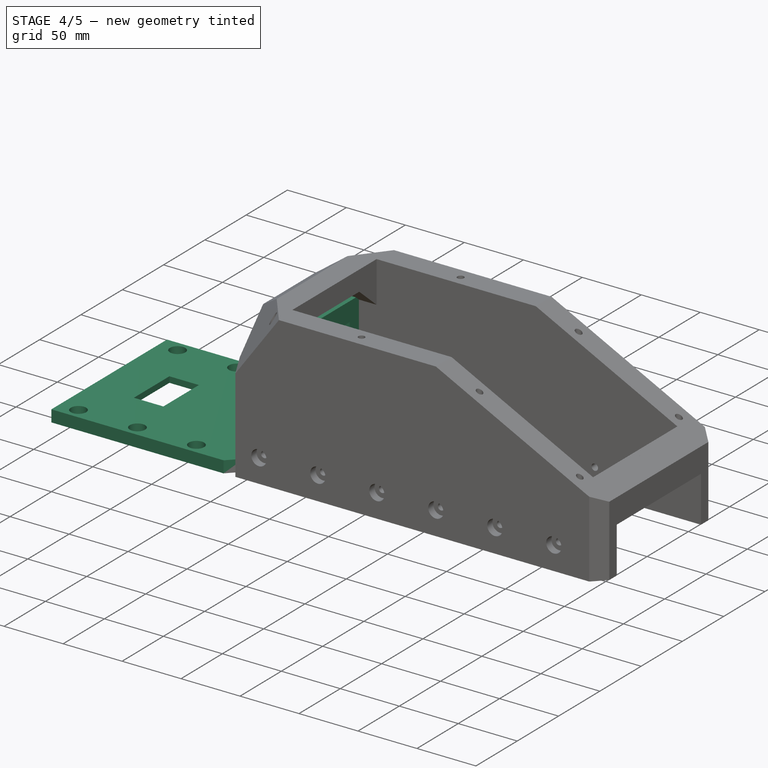
[diagram: stage 4 of 5 — iso view after this stage's code; geometry added in this stage tinted green]
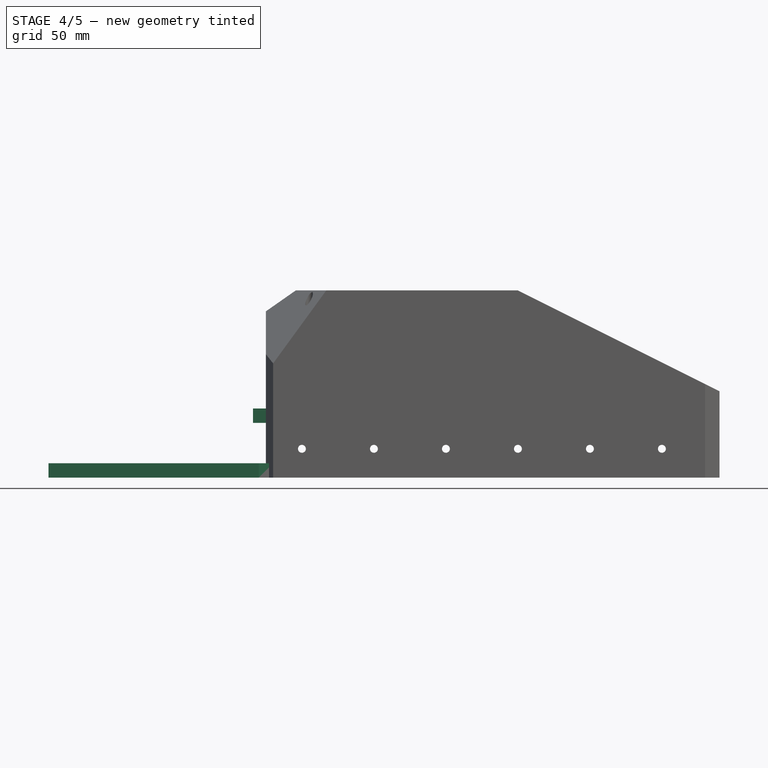
[diagram: stage 4 of 5 — front view after this stage's code; geometry added in this stage tinted green]
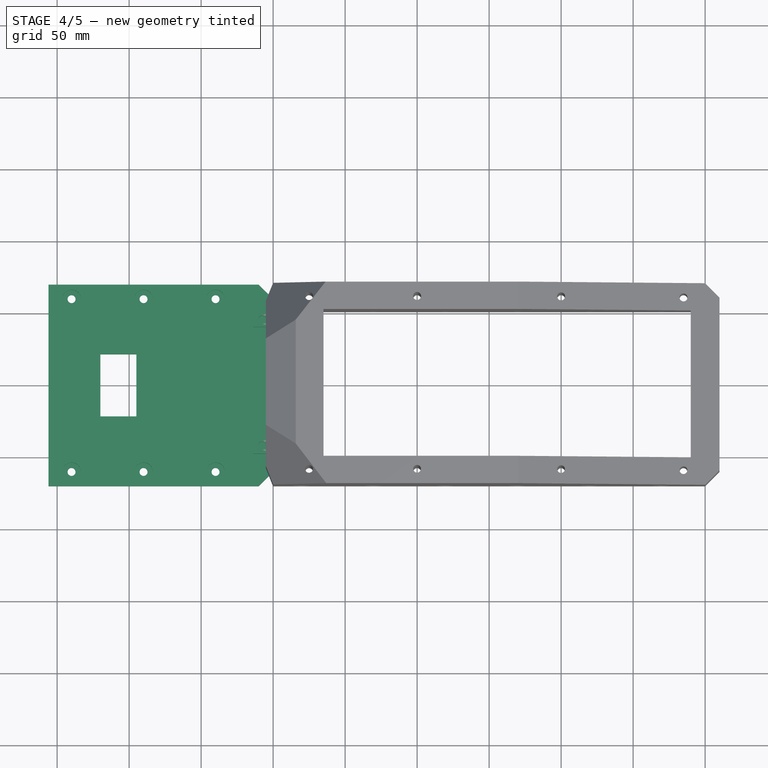
[diagram: stage 4 of 5 — top view after this stage's code; geometry added in this stage tinted green]
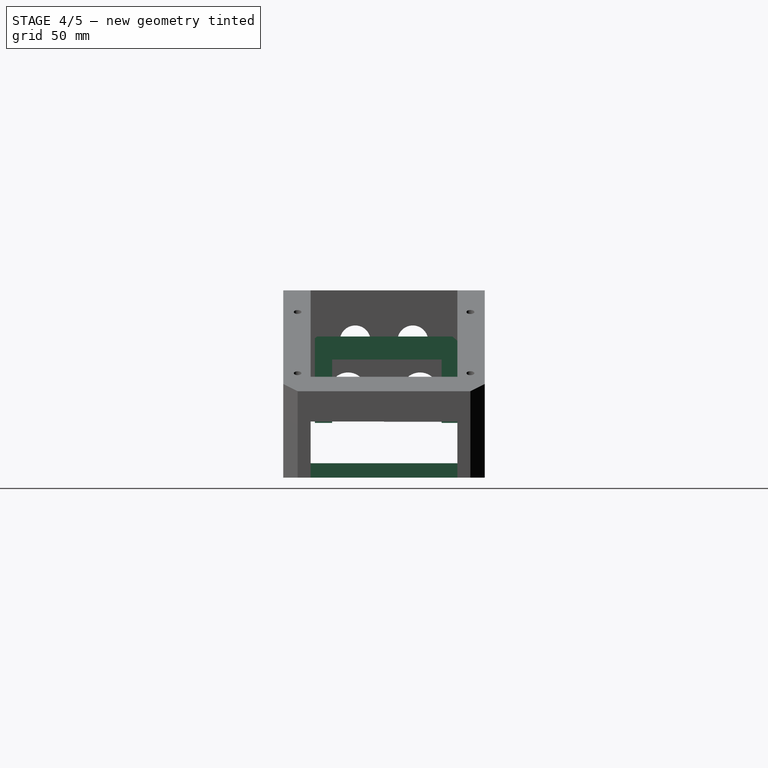
[diagram: stage 4 of 5 — right view after this stage's code; geometry added in this stage tinted green]
FEATURE [PartDesign::Body] Body003  label="LidOne"
  AllowCompound = false
  Group = -> [Sketch015,Pad005,Sketch021,Hole006]
  Origin = -> Origin004
  Placement = pos=(0,0,140) rot=(0,0,1;0rad)
  Tip = -> Hole006
FEATURE [Sketcher::SketchObject] Sketch022
  ArcFitTolerance = 1e-06
  AttachmentSupport = -> [XY_Plane005]
  FullyConstrained = false
  MakeInternals = false
  MapMode = 5
  sketch-geometry (6):
    g0: LineSegment StartX=0 StartY=60 StartZ=0 EndX=0 EndY=-60 EndZ=0
    g1: LineSegment StartX=0 StartY=-60 StartZ=0 EndX=-10 EndY=-70 EndZ=0
    g2: LineSegment StartX=-10 StartY=-70 StartZ=0 EndX=-156 EndY=-70 EndZ=0
    g3: LineSegment StartX=-156 StartY=-70 StartZ=0 EndX=-156 EndY=70 EndZ=0
    g4: LineSegment StartX=-156 StartY=70 StartZ=0 EndX=-10 EndY=70 EndZ=0
    g5: LineSegment StartX=-10 StartY=70 StartZ=0 EndX=0 EndY=60 EndZ=0
  constraints (10):
    c: Vertical(g0)
    c: Coincident(g1,g0)
    c: Coincident(g2,g1)
    c: Horizontal(g2)
    c: Coincident(g3,g2)
    c: Vertical(g3)
    c: Coincident(g4,g3)
    c: Horizontal(g4)
    c: Coincident(g5,g4)
    c: Coincident(g5,g0)
FEATURE [PartDesign::Pad] Pad008
  Direction = (0,0,1)
  Length = 10
  Length2 = 10
  Profile = -> Sketch022
  ReferenceAxis = -> Sketch022 [N_Axis]
  Refine = true
  Suppressed = false
  Type = 0
FEATURE [Sketcher::SketchObject] Sketch023
  ArcFitTolerance = 1e-06
  AttachmentOffset = pos=(0,0,10) rot=(0,0,1;0rad)
  AttachmentSupport = -> [XY_Plane005]
  FullyConstrained = false
  MakeInternals = false
  MapMode = 5
  Placement = pos=(0,0,10) rot=(0,0,1;0rad)
  sketch-geometry (6):
    g0: Circle CenterX=-140 CenterY=60 CenterZ=0 NormalX=0 NormalY=0 NormalZ=1 AngleXU=0 Radius=3.94429
    g1: Circle CenterX=-140 CenterY=-60 CenterZ=0 NormalX=0 NormalY=0 NormalZ=1 AngleXU=0 Radius=4.11369
    g2: Circle CenterX=-90 CenterY=-60 CenterZ=0 NormalX=0 NormalY=0 NormalZ=1 AngleXU=0 Radius=4.20516
    g3: Circle CenterX=-90 CenterY=60 CenterZ=0 NormalX=0 NormalY=0 NormalZ=1 AngleXU=0 Radius=4.94729
    g4: Circle CenterX=-40 CenterY=60 CenterZ=0 NormalX=0 NormalY=0 NormalZ=1 AngleXU=0 Radius=4.85619
    g5: Circle CenterX=-40 CenterY=-60 CenterZ=0 NormalX=0 NormalY=0 NormalZ=1 AngleXU=0 Radius=4.21761
FEATURE [PartDesign::Hole] Hole007
  BaseFeature = -> Pad008
  CustomThreadClearance = 0
  Depth = 25
  DepthType = 0
  Diameter = 5.5
  DrillForDepth = false
  DrillPoint = 1
  DrillPointAngle = 118
  HoleCutCountersinkAngle = 90
  HoleCutCustomValues = false
  HoleCutDepth = 6.4
  HoleCutDiameter = 13
  HoleCutType = 9
  ModelThread = false
  Profile = -> Sketch023
  Refine = true
  Suppressed = false
  Tapered = false
  TaperedAngle = 90
  ThreadClass = 0
  ThreadDepth = 25
  ThreadDepthType = 0
  ThreadDirection = 0
  ThreadFit = 0
  ThreadSize = 13
  ThreadType = 1
  Threaded = false
  UseCustomThreadClearance = false
FEATURE [Sketcher::SketchObject] Sketch024
  ArcFitTolerance = 1e-06
  AttachmentSupport = -> [XY_Plane005]
  FullyConstrained = false
  MakeInternals = false
  MapMode = 5
  sketch-geometry (4):
    g0: LineSegment StartX=-150 StartY=50 StartZ=0 EndX=-150 EndY=-50 EndZ=0
    g1: LineSegment StartX=-150 StartY=-50 StartZ=0 EndX=-20 EndY=-50 EndZ=0
    g2: LineSegment StartX=-20 StartY=-50 StartZ=0 EndX=-20 EndY=50 EndZ=0
    g3: LineSegment StartX=-20 StartY=50 StartZ=0 EndX=-150 EndY=50 EndZ=0
  constraints (8):
    c: Coincident(g0,g1)
    c: Coincident(g1,g2)
    c: Coincident(g2,g3)
    c: Coincident(g3,g0)
    c: Vertical(g0)
    c: Vertical(g2)
    c: Horizontal(g1)
    c: Horizontal(g3)
FEATURE [PartDesign::Pocket] Pocket006
  BaseFeature = -> Hole007
  Direction = (0,0,-1)
  Length = 5
  Length2 = 5
  Profile = -> Sketch024
  ReferenceAxis = -> Sketch024 [N_Axis]
  Refine = true
  Reversed = true
  Suppressed = false
  Type = 0
FEATURE [Sketcher::SketchObject] Sketch025
  ArcFitTolerance = 1e-06
  AttachmentSupport = -> [XY_Plane005]
  FullyConstrained = true
  MakeInternals = false
  MapMode = 5
  sketch-geometry (4):
    g0: LineSegment StartX=-120 StartY=21.5 StartZ=0 EndX=-120 EndY=-21.5 EndZ=0
    g1: LineSegment StartX=-120 StartY=-21.5 StartZ=0 EndX=-95 EndY=-21.5 EndZ=0
    g2: LineSegment StartX=-95 StartY=-21.5 StartZ=0 EndX=-95 EndY=21.5 EndZ=0
    g3: LineSegment StartX=-95 StartY=21.5 StartZ=0 EndX=-120 EndY=21.5 EndZ=0
  constraints (12):
    c: Coincident(g0,g1)
    c: Coincident(g1,g2)
    c: Coincident(g2,g3)
    c: Coincident(g3,g0)
    c: Vertical(g0)
    c: Vertical(g2)
    c: Horizontal(g1)
    c: Horizontal(g3)
    c: DistanceX(g3,g3) = 25
    c: DistanceY(g0,g0) = 43
    c: DistanceY(g-1,g0) = 21.5
    c: DistanceX(g0,g-1) = 120
FEATURE [PartDesign::Pocket] Pocket007
  BaseFeature = -> Pocket006
  Direction = (0,0,-1)
  Length = 21
  Length2 = 5
  Profile = -> Sketch025
  ReferenceAxis = -> Sketch025 [N_Axis]
  Refine = true
  Reversed = true
  Suppressed = false
  Type = 0
FEATURE [Sketcher::SketchObject] Sketch132
  ArcFitTolerance = 1e-06
  AttachmentSupport = -> [YZ_Plane081]
  FullyConstrained = false
  MakeInternals = false
  MapMode = 5
  Placement = pos=(0,0,0) rot=(0.57735,0.57735,0.57735;2.0944rad)
  sketch-geometry (12):
    g0: LineSegment StartX=-36 StartY=38 StartZ=0 EndX=-36 EndY=82 EndZ=0
    g1: LineSegment StartX=-36 StartY=82 StartZ=0 EndX=-48 EndY=82 EndZ=0
    g2: LineSegment StartX=-48 StartY=82 StartZ=0 EndX=-48 EndY=38 EndZ=0
    g3: LineSegment StartX=-48 StartY=38 StartZ=0 EndX=-36 EndY=38 EndZ=0
    g4: LineSegment StartX=40 StartY=38 StartZ=0 EndX=52 EndY=38 EndZ=0
    g5: LineSegment StartX=52 StartY=38 StartZ=0 EndX=52 EndY=82 EndZ=0
    g6: LineSegment StartX=52 StartY=82 StartZ=0 EndX=40 EndY=82 EndZ=0
    g7: LineSegment StartX=40 StartY=82 StartZ=0 EndX=40 EndY=38 EndZ=0
    g8: LineSegment StartX=52 StartY=82 StartZ=0 EndX=52 EndY=98 EndZ=0
    g9: LineSegment StartX=52 StartY=98 StartZ=0 EndX=-48 EndY=98 EndZ=0
    g10: LineSegment StartX=-48 StartY=98 StartZ=0 EndX=-48 EndY=82 EndZ=0
    g11: LineSegment StartX=-48 StartY=82 StartZ=0 EndX=52 EndY=82 EndZ=0
  constraints (25):
    c: Coincident(g0,g1)
    c: Coincident(g1,g2)
    c: Coincident(g2,g3)
    c: Coincident(g3,g0)
    c: Vertical(g0)
    c: Vertical(g2)
    c: Horizontal(g1)
    c: Horizontal(g3)
    c: Coincident(g4,g5)
    c: Coincident(g5,g6)
    c: Coincident(g6,g7)
    c: Coincident(g7,g4)
    c: Horizontal(g4)
    c: Horizontal(g6)
    c: Vertical(g5)
    c: Vertical(g7)
    c: Coincident(g8,g9)
    c: Coincident(g9,g10)
    c: Coincident(g10,g11)
    c: Coincident(g11,g8)
    c: Vertical(g8)
    c: Vertical(g10)
    c: Horizontal(g9)
    c: Horizontal(g11)
    c: Coincident(g8,g5)
FEATURE [PartDesign::Pad] Pad051
  Direction = (1,0,0)
  Length = 20
  Length2 = 10
  Placement = pos=(0,0,0) rot=(1,1,1;2.0944rad)
  Profile = -> Sketch132
  ReferenceAxis = -> Sketch132 [N_Axis]
  Refine = true
  Suppressed = false
  Type = 0
FEATURE [Sketcher::SketchObject] Sketch133
  ArcFitTolerance = 1e-06
  AttachmentOffset = pos=(0,0,48) rot=(0,0,1;0rad)
  AttachmentSupport = -> [XY_Plane082]
  FullyConstrained = false
  MakeInternals = false
  MapMode = 5
  Placement = pos=(0,0,48) rot=(0,0,1;0rad)
  sketch-geometry (2):
    g0: Circle CenterX=-7.5 CenterY=45 CenterZ=0 NormalX=0 NormalY=0 NormalZ=1 AngleXU=0 Radius=2.82843
    g1: Circle CenterX=-7.5 CenterY=-42.5 CenterZ=0 NormalX=0 NormalY=0 NormalZ=1 AngleXU=0 Radius=3.04165
FEATURE [Sketcher::SketchObject] Sketch134
  ArcFitTolerance = 1e-06
  AttachmentOffset = pos=(0,0,38) rot=(0,0,1;0rad)
  AttachmentSupport = -> [XY_Plane082]
  FullyConstrained = false
  MakeInternals = false
  MapMode = 5
  Placement = pos=(0,0,38) rot=(0,0,1;0rad)
  sketch-geometry (8):
    g0: LineSegment StartX=1 StartY=-36 StartZ=0 EndX=-14 EndY=-36 EndZ=0
    g1: LineSegment StartX=-14 StartY=-36 StartZ=0 EndX=-14 EndY=-48 EndZ=0
    g2: LineSegment StartX=-14 StartY=-48 StartZ=0 EndX=1 EndY=-48 EndZ=0
    g3: LineSegment StartX=1 StartY=-48 StartZ=0 EndX=1 EndY=-36 EndZ=0
    g4: LineSegment StartX=1 StartY=52 StartZ=0 EndX=-14 EndY=52 EndZ=0
    g5: LineSegment StartX=-14 StartY=52 StartZ=0 EndX=-14 EndY=40 EndZ=0
    g6: LineSegment StartX=-14 StartY=40 StartZ=0 EndX=1 EndY=40 EndZ=0
    g7: LineSegment StartX=1 StartY=40 StartZ=0 EndX=1 EndY=52 EndZ=0
  constraints (16):
    c: Coincident(g0,g1)
    c: Coincident(g1,g2)
    c: Coincident(g2,g3)
    c: Coincident(g3,g0)
    c: Horizontal(g0)
    c: Horizontal(g2)
    c: Vertical(g1)
    c: Vertical(g3)
    c: Coincident(g4,g5)
    c: Coincident(g5,g6)
    c: Coincident(g6,g7)
    c: Coincident(g7,g4)
    c: Horizontal(g4)
    c: Horizontal(g6)
    c: Vertical(g5)
    c: Vertical(g7)
FEATURE [PartDesign::Pad] Pad052
  BaseFeature = -> Pad051
  Direction = (0,0,1)
  Length = 10
  Length2 = 10
  Placement = pos=(0,0,0) rot=(1,1,1;2.0944rad)
  Profile = -> Sketch134
  ReferenceAxis = -> Sketch134 [N_Axis]
  Refine = true
  Suppressed = false
  Type = 0
FEATURE [PartDesign::Hole] Hole008
  BaseFeature = -> Pad052
  CustomThreadClearance = 0
  Depth = 25
  DepthType = 0
  Diameter = 5.8
  DrillForDepth = false
  DrillPoint = 1
  DrillPointAngle = 118
  HoleCutCountersinkAngle = 90
  HoleCutCustomValues = false
  HoleCutDepth = 0
  HoleCutDiameter = 6.1
  HoleCutType = 0
  ModelThread = false
  Placement = pos=(0,0,0) rot=(1,1,1;2.0944rad)
  Profile = -> Sketch133
  Refine = true
  Suppressed = false
  Tapered = false
  TaperedAngle = 90
  ThreadClass = 0
  ThreadDepth = 25
  ThreadDepthType = 0
  ThreadDirection = 0
  ThreadFit = 2
  ThreadSize = 13
  ThreadType = 1
  Threaded = false
  UseCustomThreadClearance = false
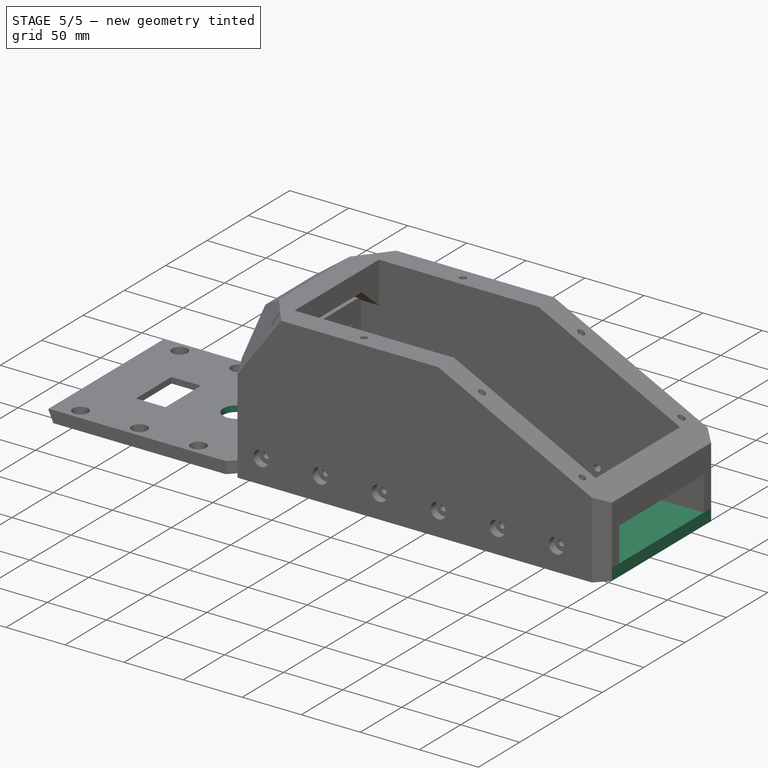
[diagram: stage 5 of 5 — iso view after this stage's code; geometry added in this stage tinted green]
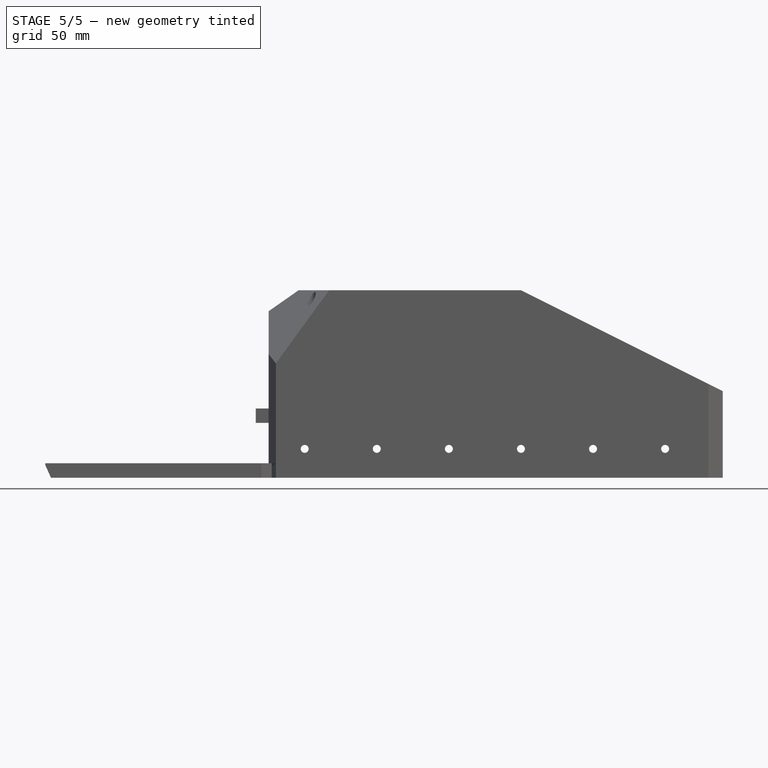
[diagram: stage 5 of 5 — front view after this stage's code; geometry added in this stage tinted green]
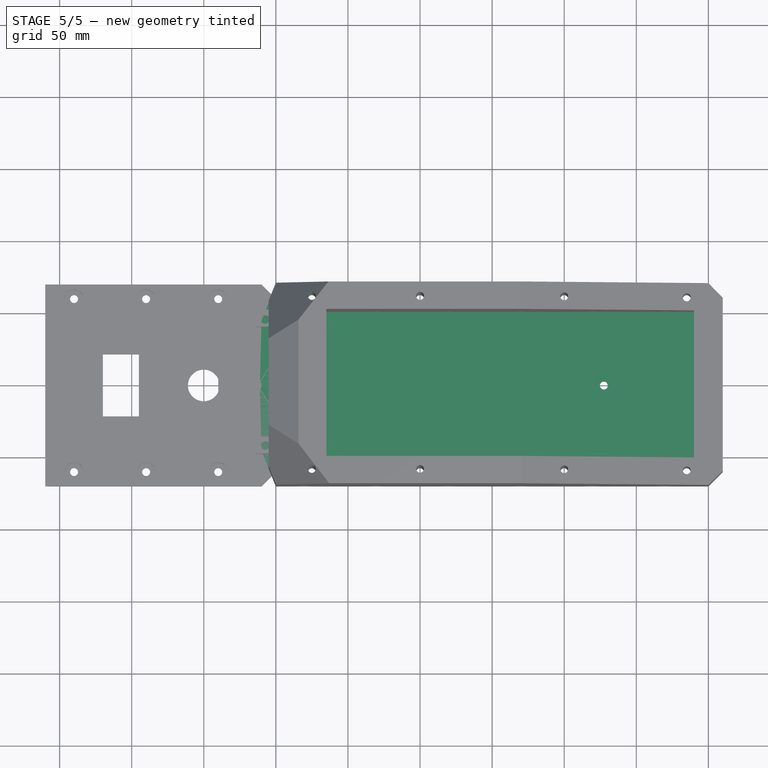
[diagram: stage 5 of 5 — top view after this stage's code; geometry added in this stage tinted green]
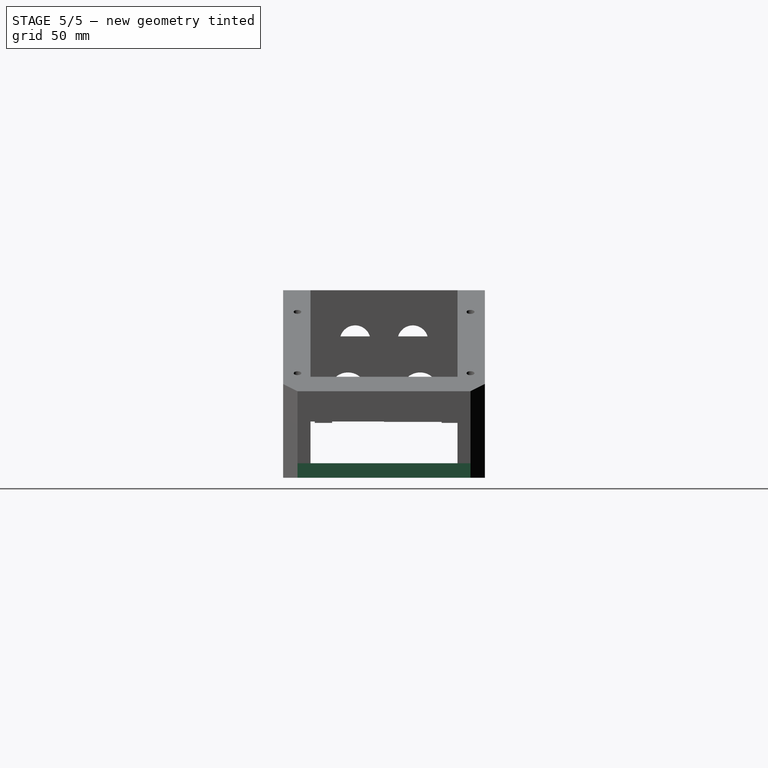
[diagram: stage 5 of 5 — right view after this stage's code; geometry added in this stage tinted green]
FEATURE [Part::Feature] Part__Feature  label="125379"
  Placement = pos=(0,1.02e-14,46) rot=(1,0,0;1.5708rad)
  shape: bbox 304.8 x 127 x 38.1 mm, 94 faces (baked)
FEATURE [Sketcher::SketchObject] Sketch
  ArcFitTolerance = 1e-06
  AttachmentSupport = -> [XY_Plane]
  FullyConstrained = false
  MakeInternals = false
  MapMode = 5
  sketch-geometry (10):
    g0: LineSegment StartX=0 StartY=70 StartZ=0 EndX=300 EndY=70 EndZ=0
    g1: LineSegment StartX=0 StartY=-70 StartZ=0 EndX=300 EndY=-70 EndZ=0
    g2: LineSegment StartX=300 StartY=-70 StartZ=0 EndX=310 EndY=-60 EndZ=0
    g3: LineSegment StartX=310 StartY=-60 StartZ=0 EndX=310 EndY=60 EndZ=0
    g4: LineSegment StartX=310 StartY=60 StartZ=0 EndX=300 EndY=70 EndZ=0
    g5: LineSegment StartX=-40 StartY=-45 StartZ=0 EndX=-40 EndY=45 EndZ=0
    g6: LineSegment StartX=0 StartY=70 StartZ=0 EndX=-10 EndY=45 EndZ=0
    g7: LineSegment StartX=0 StartY=-70 StartZ=0 EndX=-10 EndY=-45 EndZ=0
    g8: LineSegment StartX=-10 StartY=-45 StartZ=0 EndX=-40 EndY=-45 EndZ=0
    g9: LineSegment StartX=-10 StartY=45 StartZ=0 EndX=-40 EndY=45 EndZ=0
  constraints (16):
    c: Horizontal(g0)
    c: Horizontal(g1)
    c: Coincident(g2,g1)
    c: Coincident(g3,g2)
    c: Vertical(g3)
    c: Coincident(g4,g3)
    c: Coincident(g4,g0)
    c: Vertical(g5)
    c: Coincident(g6,g0)
    c: Coincident(g7,g1)
    c: Coincident(g8,g7)
    c: Coincident(g8,g5)
    c: Horizontal(g8)
    c: Coincident(g9,g6)
    c: Coincident(g9,g5)
    c: Horizontal(g9)
FEATURE [PartDesign::Pad] Pad
  Direction = (0,0,1)
  Length = 10
  Length2 = 10
  Profile = -> Sketch
  ReferenceAxis = -> Sketch [N_Axis]
  Refine = true
  Suppressed = false
  Type = 0
FEATURE [Sketcher::SketchObject] Sketch009
  ArcFitTolerance = 1e-06
  AttachmentOffset = pos=(0,0,10) rot=(0,0,1;0rad)
  AttachmentSupport = -> [XY_Plane]
  FullyConstrained = false
  MakeInternals = false
  MapMode = 5
  Placement = pos=(0,0,10) rot=(0,0,1;0rad)
  sketch-geometry (4):
    g0: Circle CenterX=-15 CenterY=0 CenterZ=0 NormalX=0 NormalY=0 NormalZ=1 AngleXU=0 Radius=2.5
    g1: Circle CenterX=65 CenterY=0 CenterZ=0 NormalX=0 NormalY=0 NormalZ=1 AngleXU=0 Radius=2.5
    g2: Circle CenterX=140 CenterY=0 CenterZ=0 NormalX=0 NormalY=0 NormalZ=1 AngleXU=0 Radius=2.5
    g3: Circle CenterX=227.5 CenterY=0 CenterZ=0 NormalX=0 NormalY=0 NormalZ=1 AngleXU=0 Radius=2.5
FEATURE [PartDesign::Hole] Hole004
  BaseFeature = -> Pad
  CustomThreadClearance = 0
  Depth = 25
  DepthType = 0
  Diameter = 5.5
  DrillForDepth = false
  DrillPoint = 1
  DrillPointAngle = 118
  HoleCutCountersinkAngle = 90
  HoleCutCustomValues = false
  HoleCutDepth = 4
  HoleCutDiameter = 10
  HoleCutType = 6
  ModelThread = false
  Profile = -> Sketch009
  Refine = true
  Suppressed = false
  Tapered = false
  TaperedAngle = 90
  ThreadClass = 0
  ThreadDepth = 25
  ThreadDepthType = 0
  ThreadDirection = 0
  ThreadFit = 0
  ThreadSize = 13
  ThreadType = 1
  Threaded = false
  UseCustomThreadClearance = false
FEATURE [Sketcher::SketchObject] Sketch010
  ArcFitTolerance = 1e-06
  AttachmentSupport = -> [Hole004]
  FullyConstrained = false
  MakeInternals = false
  MapMode = 5
  Placement = pos=(0,0,0) rot=(1,0,0;3.14159rad)
  sketch-geometry (8):
    g0: Circle CenterX=25 CenterY=60 CenterZ=0 NormalX=0 NormalY=0 NormalZ=1 AngleXU=0 Radius=5
    g1: Circle CenterX=100 CenterY=60 CenterZ=0 NormalX=0 NormalY=0 NormalZ=1 AngleXU=0 Radius=5
    g2: Circle CenterX=200 CenterY=60 CenterZ=0 NormalX=0 NormalY=0 NormalZ=1 AngleXU=0 Radius=5
    g3: Circle CenterX=285 CenterY=60 CenterZ=0 NormalX=0 NormalY=0 NormalZ=1 AngleXU=0 Radius=5
    g4: Circle CenterX=25 CenterY=-60 CenterZ=0 NormalX=0 NormalY=0 NormalZ=1 AngleXU=0 Radius=5
    g5: Circle CenterX=100 CenterY=-60 CenterZ=0 NormalX=0 NormalY=0 NormalZ=1 AngleXU=0 Radius=5
    g6: Circle CenterX=200 CenterY=-60 CenterZ=0 NormalX=0 NormalY=0 NormalZ=1 AngleXU=0 Radius=5
    g7: Circle CenterX=285 CenterY=-60 CenterZ=0 NormalX=0 NormalY=0 NormalZ=1 AngleXU=0 Radius=5
FEATURE [PartDesign::Hole] Hole005
  BaseFeature = -> Hole004
  CustomThreadClearance = 0
  Depth = 25
  DepthType = 0
  Diameter = 5.8
  DrillForDepth = false
  DrillPoint = 1
  DrillPointAngle = 118
  HoleCutCountersinkAngle = 90
  HoleCutCustomValues = false
  HoleCutDepth = 0
  HoleCutDiameter = 6.1
  HoleCutType = 0
  ModelThread = false
  Profile = -> Sketch010
  Refine = true
  Suppressed = false
  Tapered = false
  TaperedAngle = 90
  ThreadClass = 0
  ThreadDepth = 25
  ThreadDepthType = 0
  ThreadDirection = 0
  ThreadFit = 2
  ThreadSize = 13
  ThreadType = 1
  Threaded = false
  UseCustomThreadClearance = false
FEATURE [PartDesign::Pad] Pad005
  Direction = (0,0,1)
  Length = 10
  Length2 = 10
  Profile = -> Sketch015
  ReferenceAxis = -> Sketch015 [N_Axis]
  Refine = true
  Suppressed = false
  Type = 0
FEATURE [Sketcher::SketchObject] Sketch021
  ArcFitTolerance = 1e-06
  AttachmentOffset = pos=(0,0,10) rot=(0,0,1;0rad)
  AttachmentSupport = -> [XY_Plane004]
  FullyConstrained = false
  MakeInternals = false
  MapMode = 5
  Placement = pos=(0,0,10) rot=(0,0,1;0rad)
  sketch-geometry (8):
    g0: Circle CenterX=100 CenterY=60 CenterZ=0 NormalX=0 NormalY=0 NormalZ=1 AngleXU=0 Radius=3.56833
    g1: Circle CenterX=100 CenterY=-60 CenterZ=0 NormalX=0 NormalY=0 NormalZ=1 AngleXU=0 Radius=4.95694
    g2: Circle CenterX=140 CenterY=-60 CenterZ=0 NormalX=0 NormalY=0 NormalZ=1 AngleXU=0 Radius=4.3341
    g3: Circle CenterX=140 CenterY=60 CenterZ=0 NormalX=0 NormalY=0 NormalZ=1 AngleXU=0 Radius=4.12341
    g4: Circle CenterX=60 CenterY=60 CenterZ=0 NormalX=0 NormalY=0 NormalZ=1 AngleXU=0 Radius=4.20694
    g5: Circle CenterX=60 CenterY=-60 CenterZ=0 NormalX=0 NormalY=0 NormalZ=1 AngleXU=0 Radius=3.96722
    g6: Circle CenterX=30 CenterY=-30 CenterZ=0 NormalX=0 NormalY=0 NormalZ=1 AngleXU=0 Radius=3.82097
    g7: Circle CenterX=30 CenterY=30 CenterZ=0 NormalX=0 NormalY=0 NormalZ=1 AngleXU=0 Radius=4.04813
FEATURE [PartDesign::Hole] Hole006
  BaseFeature = -> Pad005
  CustomThreadClearance = 0
  Depth = 25
  DepthType = 0
  Diameter = 5.5
  DrillForDepth = false
  DrillPoint = 1
  DrillPointAngle = 118
  HoleCutCountersinkAngle = 90
  HoleCutCustomValues = false
  HoleCutDepth = 6.4
  HoleCutDiameter = 13
  HoleCutType = 9
  ModelThread = false
  Profile = -> Sketch021
  Refine = true
  Suppressed = false
  Tapered = false
  TaperedAngle = 90
  ThreadClass = 0
  ThreadDepth = 25
  ThreadDepthType = 0
  ThreadDirection = 0
  ThreadFit = 0
  ThreadSize = 13
  ThreadType = 1
  Threaded = false
  UseCustomThreadClearance = false
FEATURE [Sketcher::SketchObject] Sketch026
  ArcFitTolerance = 1e-06
  AttachmentSupport = -> [XY_Plane005]
  FullyConstrained = false
  MakeInternals = false
  MapMode = 5
  sketch-geometry (1):
    g0: Circle CenterX=-50 CenterY=0 CenterZ=0 NormalX=0 NormalY=0 NormalZ=1 AngleXU=0 Radius=11
  constraints (1):
    c: Diameter(g0) = 22
FEATURE [PartDesign::Pocket] Pocket008
  BaseFeature = -> Pocket007
  Direction = (0,0,-1)
  Length = 12
  Length2 = 5
  Profile = -> Sketch026
  ReferenceAxis = -> Sketch026 [N_Axis]
  Refine = true
  Reversed = true
  Suppressed = false
  Type = 0
FEATURE [Sketcher::SketchObject] Sketch027
  ArcFitTolerance = 1e-06
  AttachmentOffset = pos=(0,0,70) rot=(0,0,1;0rad)
  AttachmentSupport = -> [XZ_Plane005]
  FullyConstrained = false
  MakeInternals = false
  MapMode = 5
  Placement = pos=(0,-70,1.55e-14) rot=(1,0,0;1.5708rad)
  sketch-geometry (4):
    g0: LineSegment StartX=-156 StartY=10 StartZ=0 EndX=-160 EndY=10 EndZ=0
    g1: LineSegment StartX=-160 StartY=10 StartZ=0 EndX=-160 EndY=9 EndZ=0
    g2: LineSegment StartX=-160 StartY=9 StartZ=0 EndX=-156 EndY=0 EndZ=0
    g3: LineSegment StartX=-156 StartY=0 StartZ=0 EndX=-156 EndY=10 EndZ=0
  constraints (7):
    c: Horizontal(g0)
    c: Coincident(g1,g0)
    c: Vertical(g1)
    c: Coincident(g2,g1)
    c: Coincident(g3,g2)
    c: Coincident(g3,g0)
    c: Vertical(g3)
FEATURE [PartDesign::Pad] Pad009
  BaseFeature = -> Pocket008
  Direction = (0,-1,2e-16)
  Length = 140
  Length2 = 10
  Profile = -> Sketch027
  ReferenceAxis = -> Sketch027 [N_Axis]
  Refine = true
  Reversed = true
  Suppressed = false
  Type = 0
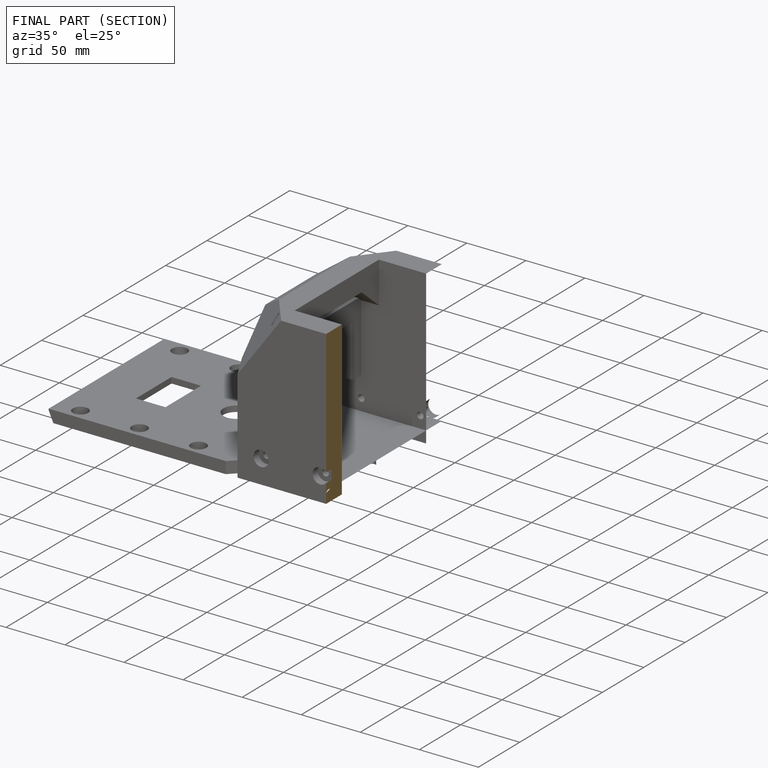
[diagram: finished part — half-section view (interior)]
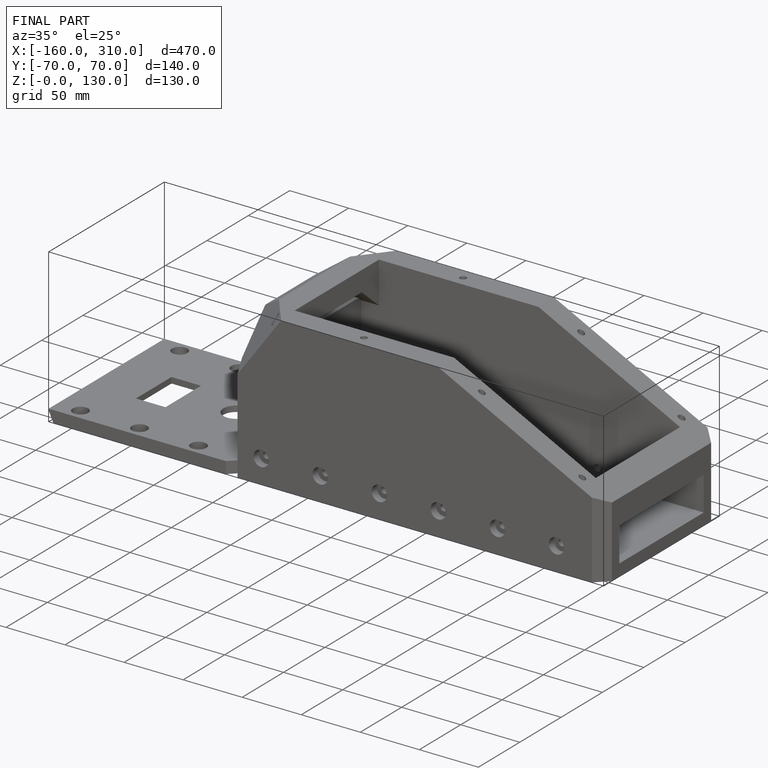
[diagram: finished part — iso view with bounding-box wireframe]
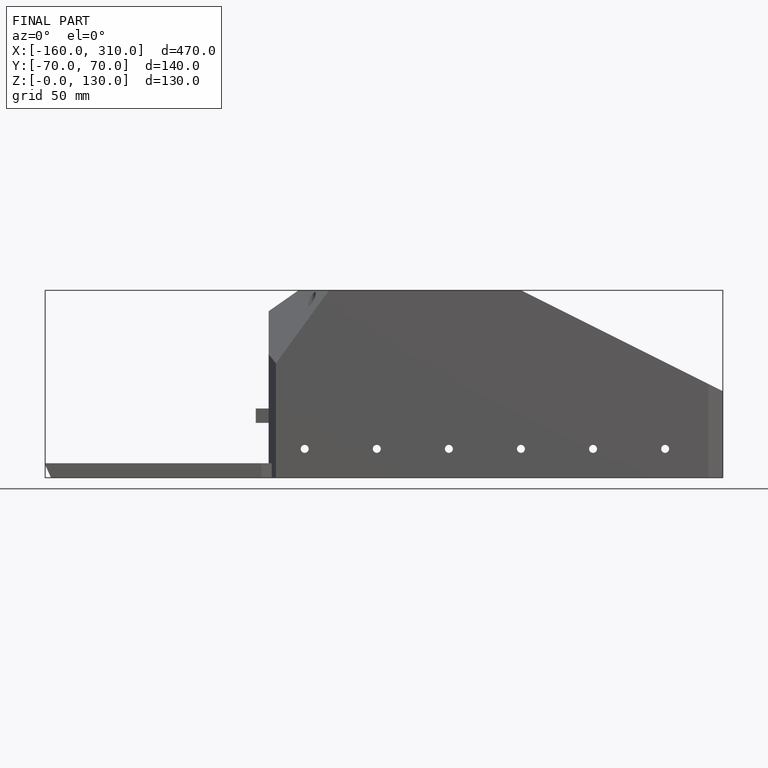
[diagram: finished part — front view with bounding-box wireframe]
